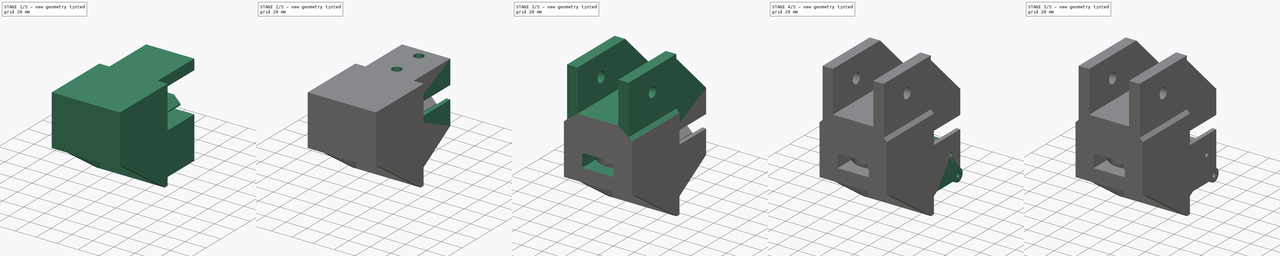
[diagram: build sequence overview — one tinted view per stage of 5, left to right]
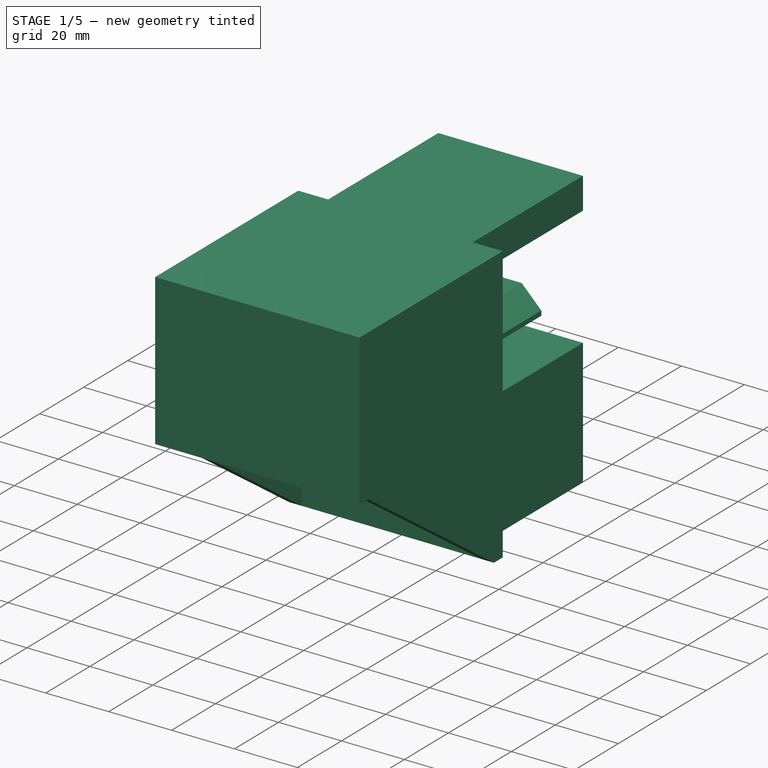
[diagram: stage 1 of 5 — iso view after this stage's code; geometry added in this stage tinted green]
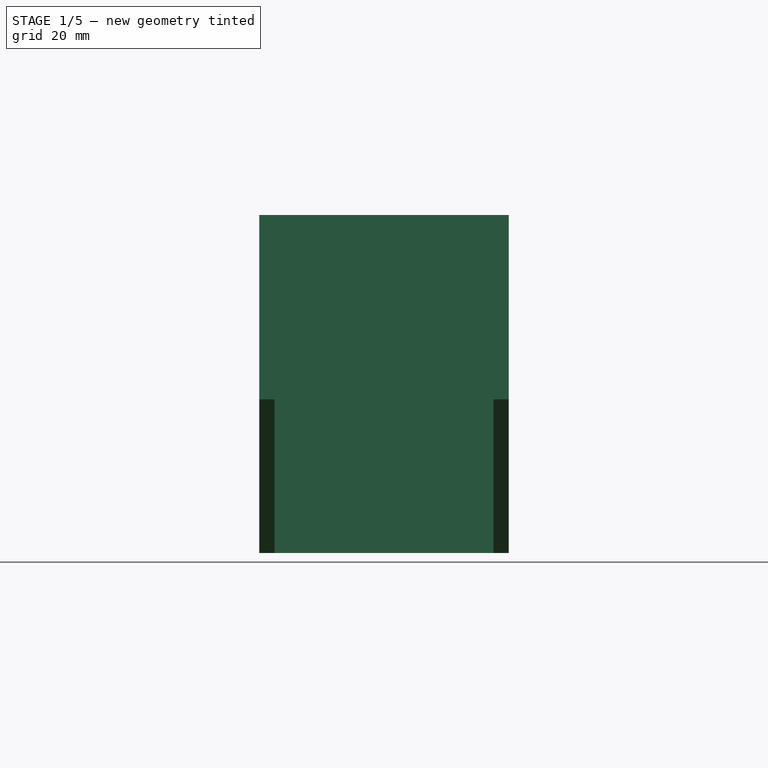
[diagram: stage 1 of 5 — front view after this stage's code; geometry added in this stage tinted green]
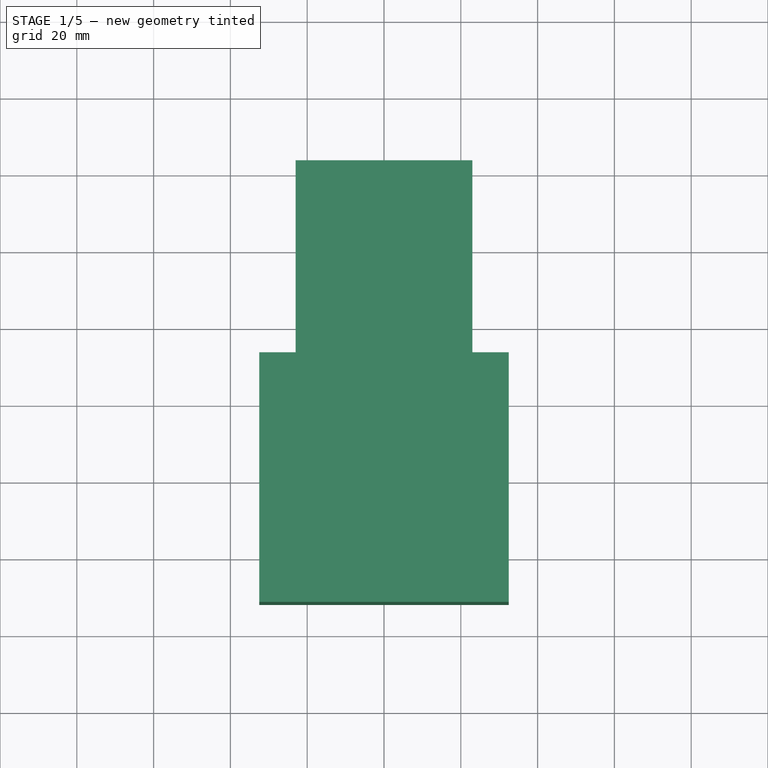
[diagram: stage 1 of 5 — top view after this stage's code; geometry added in this stage tinted green]
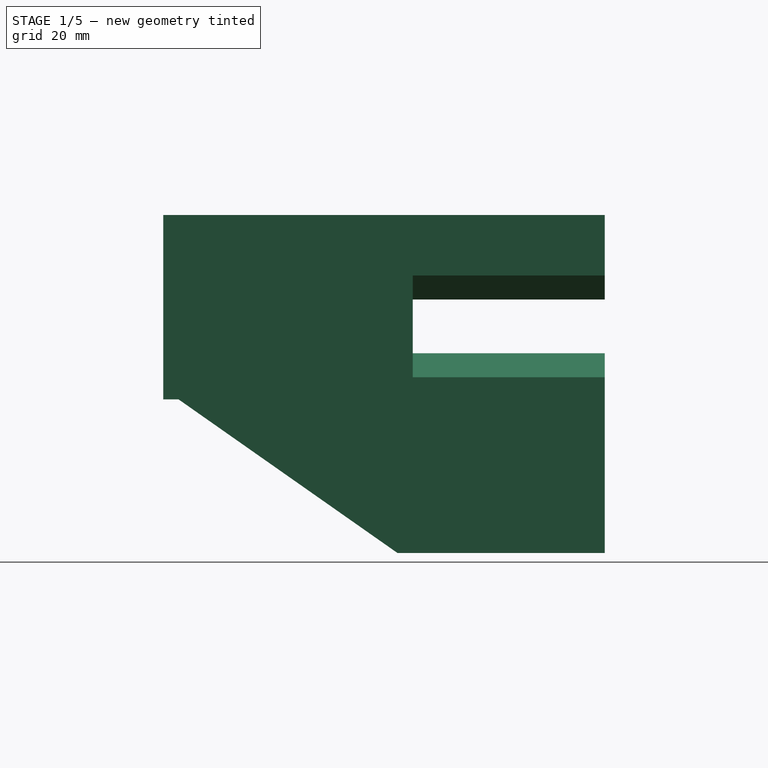
[diagram: stage 1 of 5 — right view after this stage's code; geometry added in this stage tinted green]
FCSTD DOCUMENT  (FreeCAD 1.0R39109 (Git))
Label: ARM_LargeMotorMount_v1.2
License: All rights reserved
LicenseURL: https://en.wikipedia.org/wiki/All_rights_reserved
objects: Sketcher::SketchObject×26, PartDesign::Pocket×17, PartDesign::Pad×11, PartDesign::Chamfer×4, PartDesign::Fillet×3, PartDesign::Body×1
note: 158 computed .brp shape members not serialized (recipe doc carries the construction recipe); baked Part::Feature solids carry a one-line shape summary decoded from their .brp

FEATURE [Sketcher::SketchObject] Sketch
  ArcFitTolerance = 1e-06
  AttachmentSupport = -> [XY_Plane]
  FullyConstrained = true
  MakeInternals = false
  MapMode = 5
  sketch-geometry (24):
    g0: LineSegment [constr] StartX=-23.55 StartY=-23.55 StartZ=0 EndX=23.55 EndY=-23.55 EndZ=0
    g1: LineSegment [constr] StartX=23.55 StartY=-23.55 StartZ=0 EndX=23.55 EndY=23.55 EndZ=0
    g2: LineSegment [constr] StartX=23.55 StartY=23.55 StartZ=0 EndX=-23.55 EndY=23.55 EndZ=0
    g3: LineSegment [constr] StartX=-23.55 StartY=23.55 StartZ=0 EndX=-23.55 EndY=-23.55 EndZ=0
    g4: GeomPoint [constr] X=0 Y=0 Z=0
    g5: LineSegment [constr] StartX=-28.2 StartY=-28.2 StartZ=0 EndX=28.2 EndY=-28.2 EndZ=0
    g6: LineSegment [constr] StartX=28.2 StartY=-28.2 StartZ=0 EndX=28.2 EndY=28.2 EndZ=0
    g7: LineSegment [constr] StartX=28.2 StartY=28.2 StartZ=0 EndX=-28.2 EndY=28.2 EndZ=0
    g8: LineSegment [constr] StartX=-28.2 StartY=28.2 StartZ=0 EndX=-28.2 EndY=-28.2 EndZ=0
    g9: GeomPoint [constr] X=0 Y=0 Z=0
    g10: Circle CenterX=-23.55 CenterY=23.55 CenterZ=0 NormalX=0 NormalY=0 NormalZ=1 AngleXU=0 Radius=3.375
    g11: Circle CenterX=23.55 CenterY=23.55 CenterZ=0 NormalX=0 NormalY=0 NormalZ=1 AngleXU=0 Radius=3.375
    g12: Circle CenterX=23.55 CenterY=-23.55 CenterZ=0 NormalX=0 NormalY=0 NormalZ=1 AngleXU=0 Radius=3.375
    g13: Circle CenterX=-23.55 CenterY=-23.55 CenterZ=0 NormalX=0 NormalY=0 NormalZ=1 AngleXU=0 Radius=3.375
    g14: LineSegment StartX=-32.5 StartY=-32.5 StartZ=0 EndX=32.5 EndY=-32.5 EndZ=0
    g15: LineSegment StartX=32.5 StartY=-32.5 StartZ=0 EndX=32.5 EndY=32.5 EndZ=0
    g16: LineSegment StartX=32.5 StartY=32.5 StartZ=0 EndX=-32.5 EndY=32.5 EndZ=0
    g17: LineSegment StartX=-32.5 StartY=32.5 StartZ=0 EndX=-32.5 EndY=-32.5 EndZ=0
    g18: GeomPoint [constr] X=0 Y=0 Z=0
    g19: LineSegment [constr] StartX=-19 StartY=-50 StartZ=0 EndX=19 EndY=-50 EndZ=0
    g20: LineSegment [constr] StartX=19 StartY=-50 StartZ=0 EndX=19 EndY=50 EndZ=0
    g21: LineSegment [constr] StartX=19 StartY=50 StartZ=0 EndX=-19 EndY=50 EndZ=0
    g22: LineSegment [constr] StartX=-19 StartY=50 StartZ=0 EndX=-19 EndY=-50 EndZ=0
    g23: GeomPoint [constr] X=0 Y=0 Z=0
  constraints (56):
    c: Coincident(g0,g1)
    c: Coincident(g1,g2)
    c: Coincident(g2,g3)
    c: Coincident(g3,g0)
    c: Horizontal(g0)
    c: Horizontal(g2)
    c: Vertical(g1)
    c: Vertical(g3)
    c: Symmetric(g2,g0,g4)
    c: Distance(g1,g3) = 47.1
    c: Distance(g0,g2) = 47.1
    c: Coincident(g4,g-1)
    c: Coincident(g5,g6)
    c: Coincident(g6,g7)
    c: Coincident(g7,g8)
    c: Coincident(g8,g5)
    c: Horizontal(g5)
    c: Horizontal(g7)
    c: Vertical(g6)
    c: Vertical(g8)
    c: Symmetric(g7,g5,g9)
    c: Distance(g6,g8) = 56.4
    c: Distance(g5,g7) = 56.4
    c: Coincident(g9,g4)
    c: Diameter(g10) = 6.75
    c: Coincident(g10,g2)
    c: Diameter(g11) = 6.75
    c: Coincident(g11,g1)
    c: Diameter(g12) = 6.75
    c: Coincident(g12,g0)
    c: Diameter(g13) = 6.75
    c: Coincident(g13,g0)
    c: Coincident(g14,g15)
    c: Coincident(g15,g16)
    c: Coincident(g16,g17)
    c: Coincident(g17,g14)
    c: Horizontal(g14)
    c: Horizontal(g16)
    c: Vertical(g15)
    c: Vertical(g17)
    c: Symmetric(g16,g14,g18)
    c: Distance(g15,g17) = 65
    c: Distance(g14,g16) = 65
    c: Coincident(g18,g4)
    c: Coincident(g19,g20)
    c: Coincident(g20,g21)
    c: Coincident(g21,g22)
    c: Coincident(g22,g19)
    c: Horizontal(g19)
    c: Horizontal(g21)
    c: Vertical(g20)
    c: Vertical(g22)
    c: Symmetric(g21,g19,g23)
    c: Distance(g20,g22) = 38
    c: Distance(g19,g21) = 100
    c: Coincident(g23,g4)
FEATURE [PartDesign::Pad] Pad
  Direction = (0,0,1)
  Length = 38
  Length2 = 10
  Profile = -> Sketch
  ReferenceAxis = -> Sketch [N_Axis]
  Refine = true
  Suppressed = false
  Type = 0
FEATURE [Sketcher::SketchObject] Sketch001
  ArcFitTolerance = 1e-06
  AttachmentSupport = -> [Pad]
  FullyConstrained = true
  MakeInternals = false
  MapMode = 5
  Placement = pos=(0,0,0) rot=(1,0,0;3.14159rad)
  sketch-geometry (1):
    g0: Circle CenterX=0 CenterY=0 CenterZ=0 NormalX=0 NormalY=0 NormalZ=1 AngleXU=0 Radius=20
  constraints (2):
    c: Diameter(g0) = 40
    c: Coincident(g0,g-1)
FEATURE [PartDesign::Pocket] Pocket
  BaseFeature = -> Pad
  Direction = (0,0,1)
  Length = 30
  Length2 = 5
  Profile = -> Sketch001
  ReferenceAxis = -> Sketch001 [N_Axis]
  Refine = true
  Suppressed = false
  Type = 0
FEATURE [Sketcher::SketchObject] Sketch002
  ArcFitTolerance = 1e-06
  AttachmentSupport = -> [Pocket]
  FullyConstrained = true
  MakeInternals = false
  MapMode = 5
  Placement = pos=(0,32.5,0) rot=(0,0.707107,0.707107;3.14159rad)
  sketch-geometry (43):
    g0: LineSegment [constr] StartX=0 StartY=0 StartZ=0 EndX=0 EndY=19 EndZ=0
    g1: LineSegment [constr] StartX=-7 StartY=12 StartZ=0 EndX=7 EndY=12 EndZ=0
    g2: LineSegment [constr] StartX=7 StartY=12 StartZ=0 EndX=7 EndY=26 EndZ=0
    g3: LineSegment [constr] StartX=7 StartY=26 StartZ=0 EndX=-7 EndY=26 EndZ=0
    g4: LineSegment [constr] StartX=-7 StartY=26 StartZ=0 EndX=-7 EndY=12 EndZ=0
    g5: GeomPoint [constr] X=0 Y=19 Z=0
    g6: LineSegment [constr] StartX=-14.7447 StartY=4.2553 StartZ=0 EndX=14.7447 EndY=4.2553 EndZ=0
    g7: LineSegment [constr] StartX=14.7447 StartY=4.2553 StartZ=0 EndX=14.7447 EndY=33.7447 EndZ=0
    g8: LineSegment [constr] StartX=14.7447 StartY=33.7447 StartZ=0 EndX=-14.7447 EndY=33.7447 EndZ=0
    g9: LineSegment [constr] StartX=-14.7447 StartY=33.7447 StartZ=0 EndX=-14.7447 EndY=4.2553 EndZ=0
    g10: GeomPoint [constr] X=0 Y=19 Z=0
    g11: LineSegment [constr] StartX=-9.75 StartY=0 StartZ=0 EndX=9.75 EndY=0 EndZ=0
    g12: LineSegment [constr] StartX=9.75 StartY=0 StartZ=0 EndX=9.75 EndY=38 EndZ=0
    g13: LineSegment [constr] StartX=9.75 StartY=38 StartZ=0 EndX=-9.75 EndY=38 EndZ=0
    g14: LineSegment [constr] StartX=-9.75 StartY=38 StartZ=0 EndX=-9.75 EndY=0 EndZ=0
    g15: GeomPoint [constr] X=0 Y=19 Z=0
    g16: LineSegment [constr] StartX=-19 StartY=9.25 StartZ=0 EndX=19 EndY=9.25 EndZ=0
    g17: LineSegment [constr] StartX=19 StartY=9.25 StartZ=0 EndX=19 EndY=28.75 EndZ=0
    g18: LineSegment [constr] StartX=19 StartY=28.75 StartZ=0 EndX=-19 EndY=28.75 EndZ=0
    g19: LineSegment [constr] StartX=-19 StartY=28.75 StartZ=0 EndX=-19 EndY=9.25 EndZ=0
    g20: GeomPoint [constr] X=0 Y=19 Z=0
    g21: LineSegment StartX=0 StartY=38 StartZ=0 EndX=-4 EndY=38 EndZ=0
    g22: LineSegment StartX=-4 StartY=38 StartZ=0 EndX=-4 EndY=33.7447 EndZ=0
    g23: LineSegment StartX=0 StartY=38 StartZ=0 EndX=4 EndY=38 EndZ=0
    g24: LineSegment StartX=4 StartY=38 StartZ=0 EndX=4 EndY=33.7447 EndZ=0
    g25: LineSegment StartX=4 StartY=33.7447 StartZ=0 EndX=9.75 EndY=33.7447 EndZ=0
    g26: LineSegment StartX=9.75 StartY=33.7447 StartZ=0 EndX=9.75 EndY=32.2447 EndZ=0
    g27: LineSegment StartX=-4 StartY=33.7447 StartZ=0 EndX=-9.75 EndY=33.7447 EndZ=0
    g28: LineSegment StartX=-9.75 StartY=33.7447 StartZ=0 EndX=-9.75 EndY=32.2447 EndZ=0
    g29: LineSegment StartX=-9.75 StartY=32.2447 StartZ=0 EndX=-3.5053 EndY=26 EndZ=0
    g30: LineSegment StartX=9.75 StartY=32.2447 StartZ=0 EndX=3.50531 EndY=26 EndZ=0
    g31: LineSegment StartX=-3.5053 StartY=26 StartZ=0 EndX=3.50531 EndY=26 EndZ=0
    g32: LineSegment StartX=0 StartY=0 StartZ=0 EndX=-4 EndY=0 EndZ=0
    g33: LineSegment StartX=-4 StartY=0 StartZ=0 EndX=-4 EndY=4.2553 EndZ=0
    g34: LineSegment StartX=0 StartY=0 StartZ=0 EndX=4 EndY=0 EndZ=0
    g35: LineSegment StartX=4 StartY=0 StartZ=0 EndX=4 EndY=4.2553 EndZ=0
    g36: LineSegment StartX=-4 StartY=4.2553 StartZ=0 EndX=-9.75 EndY=4.2553 EndZ=0
    g37: LineSegment StartX=-9.75 StartY=4.2553 StartZ=0 EndX=-9.75 EndY=5.7553 EndZ=0
    g38: LineSegment StartX=4 StartY=4.2553 StartZ=0 EndX=9.75 EndY=4.2553 EndZ=0
    g39: LineSegment StartX=9.75 StartY=4.2553 StartZ=0 EndX=9.75 EndY=5.7553 EndZ=0
    g40: LineSegment StartX=-9.75 StartY=5.7553 StartZ=0 EndX=-3.5053 EndY=12 EndZ=0
    g41: LineSegment StartX=9.75 StartY=5.7553 StartZ=0 EndX=3.50531 EndY=12 EndZ=0
    g42: LineSegment StartX=-3.5053 StartY=12 StartZ=0 EndX=3.50531 EndY=12 EndZ=0
  constraints (115):
    c: Distance(g0) = 19
    c: Coincident(g0,g-1)
    c: PointOnObject(g0,g-2)
    c: Coincident(g1,g2)
    c: Coincident(g2,g3)
    c: Coincident(g3,g4)
    c: Coincident(g4,g1)
    c: Horizontal(g1)
    c: Horizontal(g3)
    c: Vertical(g2)
    c: Vertical(g4)
    c: Symmetric(g3,g1,g5)
    c: Distance(g2,g4) = 14
    c: Distance(g1,g3) = 14
    c: Coincident(g5,g0)
    c: Coincident(g6,g7)
    c: Coincident(g7,g8)
    c: Coincident(g8,g9)
    c: Coincident(g9,g6)
    c: Horizontal(g6)
    c: Horizontal(g8)
    c: Vertical(g7)
    c: Vertical(g9)
    c: Symmetric(g8,g6,g10)
    c: Distance(g7,g9) = 29.4894
    c: Distance(g6,g8) = 29.4894
    c: Coincident(g10,g0)
    c: Coincident(g11,g12)
    c: Coincident(g12,g13)
    c: Coincident(g13,g14)
    c: Coincident(g14,g11)
    c: Horizontal(g11)
    c: Horizontal(g13)
    c: Vertical(g12)
    c: Vertical(g14)
    c: Symmetric(g13,g11,g15)
    c: Distance(g12,g14) = 19.5
    c: Distance(g11,g13) = 38
    c: Coincident(g15,g0)
    c: Coincident(g16,g17)
    c: Coincident(g17,g18)
    c: Coincident(g18,g19)
    c: Coincident(g19,g16)
    c: Horizontal(g16)
    c: Horizontal(g18)
    c: Vertical(g17)
    c: Vertical(g19)
    c: Symmetric(g18,g16,g20)
    c: Distance(g17,g19) = 38
    c: Distance(g16,g18) = 19.5
    c: Coincident(g20,g0)
    c: Distance(g21) = 4
    c: Symmetric(g13,g13,g21)
    c: PointOnObject(g21,g13)
    c: Coincident(g22,g21)
    c: Vertical(g22)
    c: Distance(g23) = 4
    c: Coincident(g23,g21)
    c: PointOnObject(g23,g13)
    c: Coincident(g24,g23)
    c: Vertical(g24)
    c: PointOnObject(g24,g8)
    c: PointOnObject(g22,g8)
    c: Distance(g25) = 5.75
    c: Coincident(g25,g24)
    c: PointOnObject(g25,g8)
    c: Distance(g26) = 1.5
    c: Coincident(g26,g25)
    c: PointOnObject(g26,g12)
    c: Coincident(g27,g22)
    c: PointOnObject(g27,g14)
    c: Horizontal(g27)
    c: Distance(g28) = 1.5
    c: Coincident(g28,g27)
    c: PointOnObject(g28,g14)
    c: Angle(g-1,g29) = -0.785398
    c: Coincident(g29,g28)
    c: Angle(g-1,g30) = -2.35619
    c: Coincident(g30,g26)
    c: PointOnObject(g29,g3)
    c: PointOnObject(g30,g3)
    c: Coincident(g31,g29)
    c: Coincident(g31,g30)
    c: Distance(g32) = 4
    c: Coincident(g32,g0)
    c: PointOnObject(g32,g11)
    c: Coincident(g33,g32)
    c: Vertical(g33)
    c: Distance(g34) = 4
    c: Coincident(g34,g0)
    c: PointOnObject(g34,g11)
    c: Coincident(g35,g34)
    c: Vertical(g35)
    c: PointOnObject(g35,g6)
    c: PointOnObject(g33,g6)
    c: Distance(g36) = 5.75
    c: Coincident(g36,g33)
    c: PointOnObject(g36,g6)
    c: Distance(g37) = 1.5
    c: Coincident(g37,g36)
    c: PointOnObject(g37,g14)
    c: Distance(g38) = 5.75
    c: Coincident(g38,g35)
    c: PointOnObject(g38,g6)
    c: Distance(g39) = 1.5
    c: Coincident(g39,g38)
    c: PointOnObject(g39,g12)
    c: Angle(g-1,g40) = 0.785398
    c: Coincident(g40,g37)
    c: Angle(g-1,g41) = 2.35619
    c: Coincident(g41,g39)
    c: PointOnObject(g40,g1)
    c: PointOnObject(g41,g1)
    c: Coincident(g42,g40)
    c: Coincident(g42,g41)
FEATURE [PartDesign::Pad] Pad001
  BaseFeature = -> Pocket
  Direction = (0,1,-2e-16)
  Length = 50
  Length2 = 10
  Profile = -> Sketch002
  ReferenceAxis = -> Sketch002 [N_Axis]
  Refine = true
  Suppressed = false
  Type = 0
FEATURE [Sketcher::SketchObject] Sketch003
  ArcFitTolerance = 1e-06
  AttachmentSupport = -> [Pad001]
  ExternalGeometry = -> [Pad001]
  FullyConstrained = true
  MakeInternals = false
  MapMode = 5
  Placement = pos=(0,32.5,0) rot=(0,0.707107,0.707107;3.14159rad)
  sketch-geometry (13):
    g0: LineSegment [constr] StartX=4.08147e-06 StartY=26 StartZ=0 EndX=4.08147e-06 EndY=12 EndZ=0
    g1: LineSegment [constr] StartX=4.08147e-06 StartY=19 StartZ=0 EndX=-13 EndY=19 EndZ=0
    g2: LineSegment [constr] StartX=4.08147e-06 StartY=19 StartZ=0 EndX=13 EndY=19 EndZ=0
    g3: LineSegment StartX=-19 StartY=13 StartZ=0 EndX=-7 EndY=13 EndZ=0
    g4: LineSegment StartX=-7 StartY=13 StartZ=0 EndX=-7 EndY=25 EndZ=0
    g5: LineSegment StartX=-7 StartY=25 StartZ=0 EndX=-19 EndY=25 EndZ=0
    g6: LineSegment StartX=-19 StartY=25 StartZ=0 EndX=-19 EndY=13 EndZ=0
    g7: GeomPoint [constr] X=-13 Y=19 Z=0
    g8: LineSegment StartX=7 StartY=13 StartZ=0 EndX=19 EndY=13 EndZ=0
    g9: LineSegment StartX=19 StartY=13 StartZ=0 EndX=19 EndY=25 EndZ=0
    g10: LineSegment StartX=19 StartY=25 StartZ=0 EndX=7 EndY=25 EndZ=0
    g11: LineSegment StartX=7 StartY=25 StartZ=0 EndX=7 EndY=13 EndZ=0
    g12: GeomPoint [constr] X=13 Y=19 Z=0
  constraints (32):
    c: Symmetric(g-3,g-3,g0)
    c: Symmetric(g-4,g-4,g0)
    c: Distance(g1) = 13
    c: Symmetric(g0,g0,g1)
    c: Horizontal(g1)
    c: Distance(g2) = 13
    c: Coincident(g2,g1)
    c: Horizontal(g2)
    c: Coincident(g3,g4)
    c: Coincident(g4,g5)
    c: Coincident(g5,g6)
    c: Coincident(g6,g3)
    c: Horizontal(g3)
    c: Horizontal(g5)
    c: Vertical(g4)
    c: Vertical(g6)
    c: Symmetric(g5,g3,g7)
    c: Distance(g4,g6) = 12
    c: Distance(g3,g5) = 12
    c: Coincident(g7,g1)
    c: Coincident(g8,g9)
    c: Coincident(g9,g10)
    c: Coincident(g10,g11)
    c: Coincident(g11,g8)
    c: Horizontal(g8)
    c: Horizontal(g10)
    c: Vertical(g9)
    c: Vertical(g11)
    c: Symmetric(g10,g8,g12)
    c: Distance(g9,g11) = 12
    c: Distance(g8,g10) = 12
    c: Coincident(g12,g2)
FEATURE [PartDesign::Pocket] Pocket001
  BaseFeature = -> Pad001
  Direction = (0,-1,2e-16)
  Length = 30
  Length2 = 5
  Profile = -> Sketch003
  ReferenceAxis = -> Sketch003 [N_Axis]
  Refine = true
  Suppressed = false
  Type = 0
FEATURE [Sketcher::SketchObject] Sketch004
  ArcFitTolerance = 1e-06
  AttachmentSupport = -> [Pocket001]
  ExternalGeometry = -> [Pocket001]
  FullyConstrained = false
  MakeInternals = false
  MapMode = 5
  Placement = pos=(0,0,-1.8e-15) rot=(1,0,0;3.14159rad)
  sketch-geometry (15):
    g0: LineSegment StartX=-28.5 StartY=-28.5 StartZ=0 EndX=28.5 EndY=-28.5 EndZ=0
    g1: LineSegment StartX=28.5 StartY=-28.5 StartZ=0 EndX=28.5 EndY=28.5 EndZ=0
    g2: LineSegment StartX=28.5 StartY=28.5 StartZ=0 EndX=-28.5 EndY=28.5 EndZ=0
    g3: LineSegment StartX=-28.5 StartY=28.5 StartZ=0 EndX=-28.5 EndY=-28.5 EndZ=0
    g4: GeomPoint [constr] X=0 Y=0 Z=0
    g5: LineSegment StartX=0 StartY=-82.5 StartZ=0 EndX=23 EndY=-82.5 EndZ=0
    g6: LineSegment StartX=0 StartY=-82.5 StartZ=0 EndX=-23 EndY=-82.5 EndZ=0
    g7: LineSegment StartX=23 StartY=-82.5 StartZ=0 EndX=23 EndY=-32.5 EndZ=0
    g8: LineSegment StartX=-23 StartY=-82.5 StartZ=0 EndX=-23 EndY=-32.5 EndZ=0
    g9: LineSegment StartX=-32.5 StartY=-32.5 StartZ=0 EndX=-23 EndY=-32.5 EndZ=0
    g10: LineSegment StartX=32.5 StartY=-32.5 StartZ=0 EndX=32.5 EndY=32.5 EndZ=0
    g11: LineSegment StartX=32.5 StartY=32.5 StartZ=0 EndX=-32.5 EndY=32.5 EndZ=0
    g12: LineSegment StartX=-32.5 StartY=32.5 StartZ=0 EndX=-32.5 EndY=-32.5 EndZ=0
    g13: GeomPoint [constr] X=0 Y=0 Z=0
    g14: LineSegment StartX=23 StartY=-32.5 StartZ=0 EndX=32.5 EndY=-32.5 EndZ=0
  constraints (38):
    c: Coincident(g0,g1)
    c: Coincident(g1,g2)
    c: Coincident(g2,g3)
    c: Coincident(g3,g0)
    c: Horizontal(g0)
    c: Horizontal(g2)
    c: Vertical(g1)
    c: Vertical(g3)
    c: Symmetric(g2,g0,g4)
    c: Distance(g1,g3) = 57
    c: Distance(g0,g2) = 57
    c: Coincident(g4,g-1)
    c: Distance(g5) = 23
    c: Symmetric(g-3,g-3,g5)
    c: Horizontal(g5)
    c: Distance(g6) = 23
    c: Coincident(g6,g5)
    c: Horizontal(g6)
    c: Distance(g7) = 50
    c: Coincident(g7,g5)
    c: Vertical(g7)
    c: Distance(g8) = 50
    c: Coincident(g8,g6)
    c: Vertical(g8)
    c: Coincident(g14,g10)
    c: Coincident(g10,g11)
    c: Coincident(g11,g12)
    c: Coincident(g12,g9)
    c: Horizontal(g9)
    c: Horizontal(g11)
    c: Vertical(g10)
    c: Vertical(g12)
    c: Symmetric(g11,g9,g13)
    c: Distance(g10,g12) = 65
    c: Distance(g9,g11) = 65
    c: Coincident(g13,g4)
    c: PointOnObject(g9,g8)
    c: PointOnObject(g14,g7)
FEATURE [PartDesign::Pad] Pad002
  BaseFeature = -> Pocket001
  Direction = (0,0,-1)
  Length = 40
  Length2 = 10
  Profile = -> Sketch004
  ReferenceAxis = -> Sketch004 [N_Axis]
  Refine = true
  Suppressed = false
  Type = 0
FEATURE [Sketcher::SketchObject] Sketch005
  ArcFitTolerance = 1e-06
  AttachmentSupport = -> [Pad002]
  ExternalGeometry = -> [Pad002]
  FullyConstrained = true
  MakeInternals = false
  MapMode = 5
  Placement = pos=(32.5,0,0) rot=(0.57735,0.57735,0.57735;2.0944rad)
  sketch-geometry (5):
    g0: LineSegment StartX=-32.5 StartY=-40 StartZ=0 EndX=-32.5 EndY=0 EndZ=0
    g1: LineSegment StartX=-32.5 StartY=0 StartZ=0 EndX=-28.5 EndY=0 EndZ=0
    g2: LineSegment [constr] StartX=32.5 StartY=-40 StartZ=0 EndX=28.5 EndY=-40 EndZ=0
    g3: LineSegment StartX=-28.5 StartY=0 StartZ=0 EndX=28.5 EndY=-40 EndZ=0
    g4: LineSegment StartX=-32.5 StartY=-40 StartZ=0 EndX=28.5 EndY=-40 EndZ=0
  constraints (13):
    c: Distance(g0) = 40
    c: Coincident(g0,g-4)
    c: Vertical(g0)
    c: Distance(g1) = 4
    c: Coincident(g1,g0)
    c: PointOnObject(g1,g-1)
    c: Distance(g2) = 4
    c: Coincident(g2,g-3)
    c: PointOnObject(g2,g-3)
    c: Coincident(g3,g1)
    c: Coincident(g3,g2)
    c: Coincident(g4,g0)
    c: Coincident(g4,g2)
FEATURE [PartDesign::Pocket] Pocket002
  BaseFeature = -> Pad002
  Direction = (-1,0,0)
  Length = 100
  Length2 = 5
  Profile = -> Sketch005
  ReferenceAxis = -> Sketch005 [N_Axis]
  Refine = true
  Suppressed = false
  Type = 0
FEATURE [Sketcher::SketchObject] Sketch006
  ArcFitTolerance = 1e-06
  AttachmentSupport = -> [Pocket002]
  ExternalGeometry = -> [Pocket002]
  FullyConstrained = false
  MakeInternals = false
  MapMode = 5
  Placement = pos=(0,0,38) rot=(0,0,1;0rad)
  sketch-geometry (10):
    g0: LineSegment StartX=0 StartY=82.5 StartZ=0 EndX=-23 EndY=82.5 EndZ=0
    g1: LineSegment StartX=0 StartY=82.5 StartZ=0 EndX=23 EndY=82.5 EndZ=0
    g2: LineSegment StartX=-23 StartY=82.5 StartZ=0 EndX=-23 EndY=32.5 EndZ=0
    g3: LineSegment StartX=23 StartY=82.5 StartZ=0 EndX=23 EndY=32.5 EndZ=0
    g4: LineSegment StartX=-32.5 StartY=-32.5 StartZ=0 EndX=32.5 EndY=-32.5 EndZ=0
    g5: LineSegment StartX=32.5 StartY=-32.5 StartZ=0 EndX=32.5 EndY=32.5 EndZ=0
    g6: LineSegment StartX=32.5 StartY=32.5 StartZ=0 EndX=23 EndY=32.5 EndZ=0
    g7: LineSegment StartX=-32.5 StartY=32.5 StartZ=0 EndX=-32.5 EndY=-32.5 EndZ=0
    g8: GeomPoint [constr] X=0 Y=0 Z=0
    g9: LineSegment StartX=-23 StartY=32.5 StartZ=0 EndX=-32.5 EndY=32.5 EndZ=0
  constraints (26):
    c: Distance(g0) = 23
    c: Symmetric(g-3,g-3,g0)
    c: Horizontal(g0)
    c: Distance(g1) = 23
    c: Coincident(g1,g0)
    c: Horizontal(g1)
    c: Distance(g2) = 50
    c: Coincident(g2,g0)
    c: Vertical(g2)
    c: Distance(g3) = 50
    c: Coincident(g3,g1)
    c: Vertical(g3)
    c: Coincident(g4,g5)
    c: Coincident(g5,g6)
    c: Coincident(g9,g7)
    c: Coincident(g7,g4)
    c: Horizontal(g4)
    c: Horizontal(g6)
    c: Vertical(g5)
    c: Vertical(g7)
    c: Symmetric(g6,g4,g8)
    c: Distance(g5,g7) = 65
    c: Distance(g4,g9) = 65
    c: Coincident(g8,g-1)
    c: PointOnObject(g6,g3)
    c: PointOnObject(g9,g2)
FEATURE [PartDesign::Pad] Pad003
  BaseFeature = -> Pocket002
  Direction = (0,0,1)
  Length = 10
  Length2 = 10
  Profile = -> Sketch006
  ReferenceAxis = -> Sketch006 [N_Axis]
  Refine = true
  Suppressed = false
  Type = 0
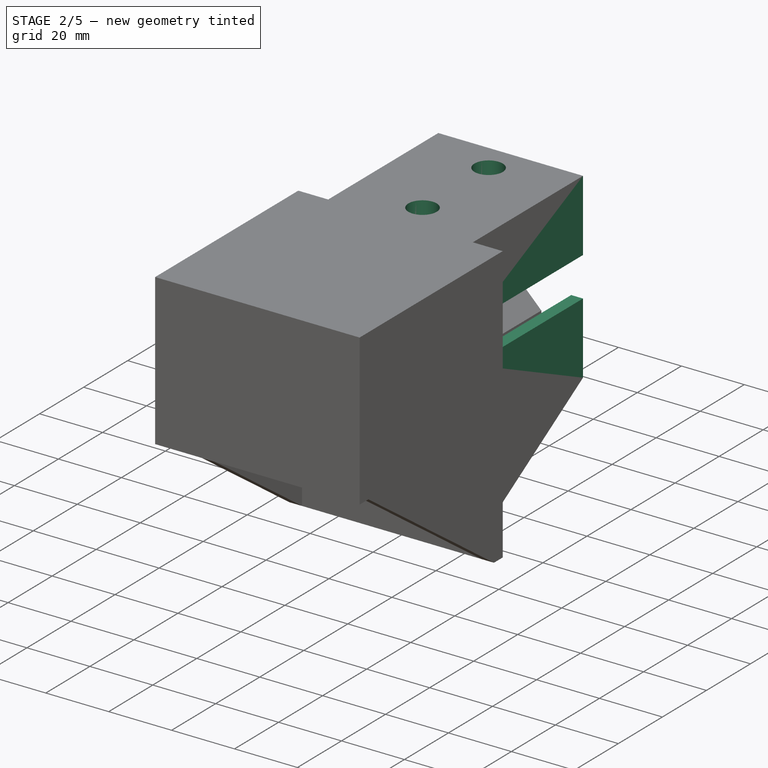
[diagram: stage 2 of 5 — iso view after this stage's code; geometry added in this stage tinted green]
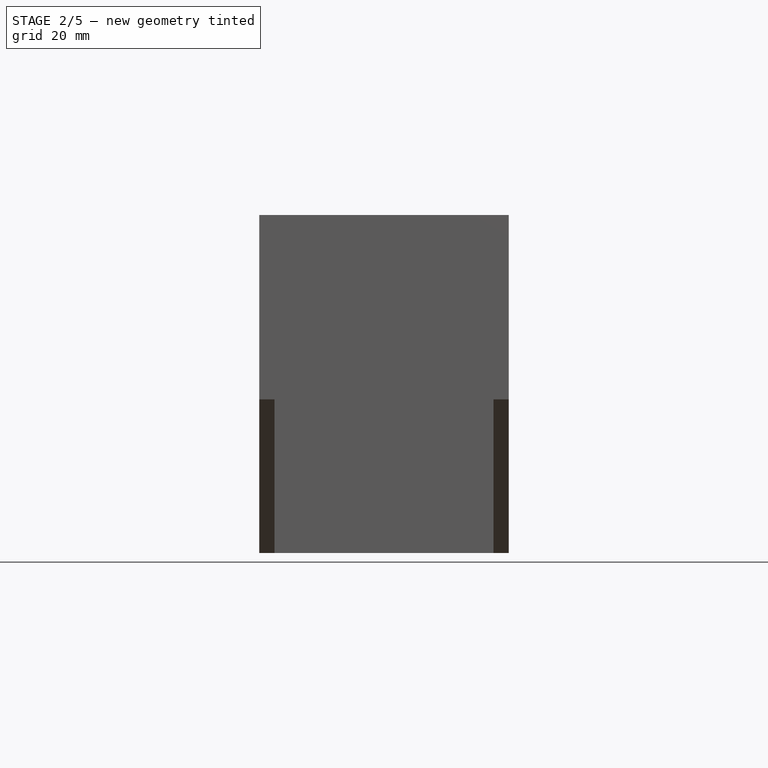
[diagram: stage 2 of 5 — front view after this stage's code; geometry added in this stage tinted green]
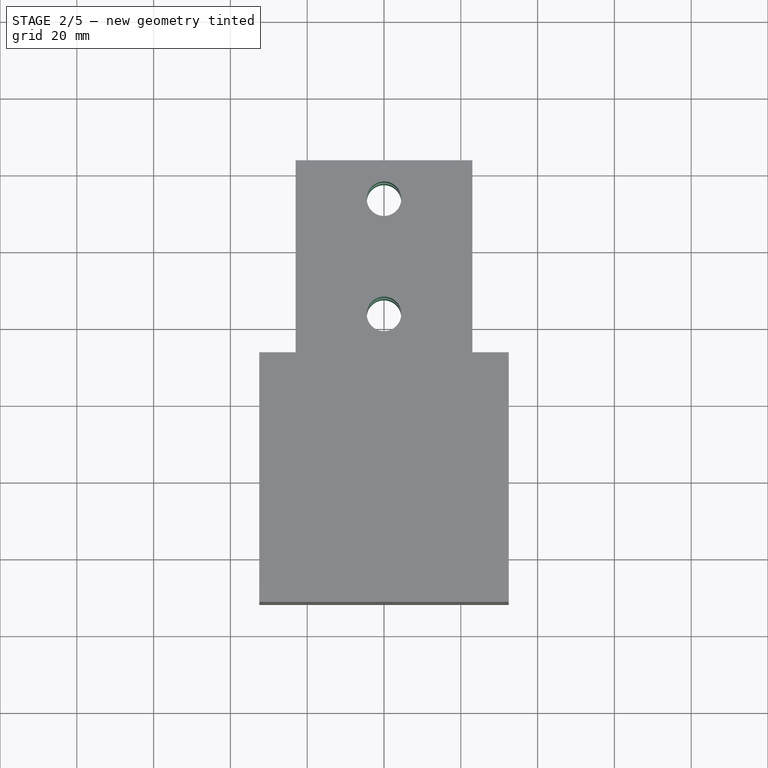
[diagram: stage 2 of 5 — top view after this stage's code; geometry added in this stage tinted green]
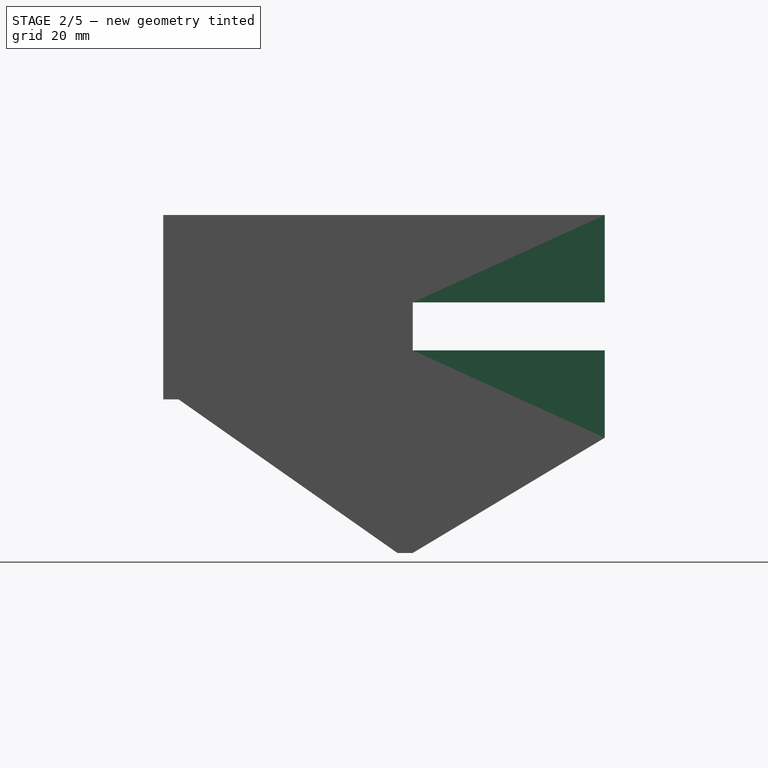
[diagram: stage 2 of 5 — right view after this stage's code; geometry added in this stage tinted green]
FEATURE [Sketcher::SketchObject] Sketch007
  ArcFitTolerance = 1e-06
  AttachmentSupport = -> [Pad003]
  ExternalGeometry = -> [Pad003]
  FullyConstrained = true
  MakeInternals = false
  MapMode = 5
  Placement = pos=(0,0,-1.8e-15) rot=(0,0,1;0rad)
  sketch-geometry (8):
    g0: LineSegment StartX=23 StartY=82.5 StartZ=0 EndX=4 EndY=82.5 EndZ=0
    g1: LineSegment StartX=4 StartY=82.5 StartZ=0 EndX=4 EndY=32.5 EndZ=0
    g2: LineSegment StartX=4 StartY=32.5 StartZ=0 EndX=23 EndY=32.5 EndZ=0
    g3: LineSegment StartX=23 StartY=32.5 StartZ=0 EndX=23 EndY=82.5 EndZ=0
    g4: LineSegment StartX=-23 StartY=82.5 StartZ=0 EndX=-23 EndY=32.5 EndZ=0
    g5: LineSegment StartX=-23 StartY=32.5 StartZ=0 EndX=-4 EndY=32.5 EndZ=0
    g6: LineSegment StartX=-4 StartY=32.5 StartZ=0 EndX=-4 EndY=82.5 EndZ=0
    g7: LineSegment StartX=-4 StartY=82.5 StartZ=0 EndX=-23 EndY=82.5 EndZ=0
  constraints (21):
    c: Coincident(g0,g1)
    c: Coincident(g1,g2)
    c: Coincident(g2,g3)
    c: Coincident(g3,g0)
    c: Horizontal(g0)
    c: Horizontal(g2)
    c: Vertical(g1)
    c: Vertical(g3)
    c: Distance(g1,g3) = 19
    c: Distance(g0,g2) = 50
    c: Coincident(g0,g-4)
    c: Coincident(g4,g5)
    c: Coincident(g5,g6)
    c: Coincident(g6,g7)
    c: Coincident(g7,g4)
    c: Vertical(g4)
    c: Vertical(g6)
    c: Horizontal(g5)
    c: Horizontal(g7)
    c: Coincident(g4,g-3)
    c: Coincident(g5,g-6)
FEATURE [PartDesign::Pocket] Pocket003  label="MountingClearanceNudge1"
  BaseFeature = -> Pad003
  Direction = (0,0,-1)
  Length = 0.25
  Length2 = 5
  Profile = -> Sketch007
  ReferenceAxis = -> Sketch007 [N_Axis]
  Refine = true
  Suppressed = false
  Type = 0
FEATURE [Sketcher::SketchObject] Sketch008
  ArcFitTolerance = 1e-06
  AttachmentSupport = -> [Pocket003]
  ExternalGeometry = -> [Pocket003]
  FullyConstrained = true
  MakeInternals = false
  MapMode = 5
  Placement = pos=(0,0,38) rot=(1,0,0;3.14159rad)
  sketch-geometry (8):
    g0: LineSegment StartX=-23 StartY=-82.5 StartZ=0 EndX=-4 EndY=-82.5 EndZ=0
    g1: LineSegment StartX=-4 StartY=-82.5 StartZ=0 EndX=-4 EndY=-32.5 EndZ=0
    g2: LineSegment StartX=-4 StartY=-32.5 StartZ=0 EndX=-23 EndY=-32.5 EndZ=0
    g3: LineSegment StartX=-23 StartY=-32.5 StartZ=0 EndX=-23 EndY=-82.5 EndZ=0
    g4: LineSegment StartX=23 StartY=-82.5 StartZ=0 EndX=23 EndY=-32.5 EndZ=0
    g5: LineSegment StartX=23 StartY=-32.5 StartZ=0 EndX=4 EndY=-32.5 EndZ=0
    g6: LineSegment StartX=4 StartY=-32.5 StartZ=0 EndX=4 EndY=-82.5 EndZ=0
    g7: LineSegment StartX=4 StartY=-82.5 StartZ=0 EndX=23 EndY=-82.5 EndZ=0
  constraints (20):
    c: Coincident(g0,g1)
    c: Coincident(g1,g2)
    c: Coincident(g2,g3)
    c: Coincident(g3,g0)
    c: Horizontal(g0)
    c: Horizontal(g2)
    c: Vertical(g1)
    c: Vertical(g3)
    c: Coincident(g0,g-5)
    c: Coincident(g1,g-6)
    c: Coincident(g4,g5)
    c: Coincident(g5,g6)
    c: Coincident(g6,g7)
    c: Coincident(g7,g4)
    c: Vertical(g4)
    c: Vertical(g6)
    c: Horizontal(g5)
    c: Horizontal(g7)
    c: Coincident(g4,g-4)
    c: Coincident(g5,g-3)
FEATURE [PartDesign::Pocket] Pocket004  label="MountingClearanceNudge2"
  BaseFeature = -> Pocket003
  Direction = (0,0,1)
  Length = 0.25
  Length2 = 5
  Profile = -> Sketch008
  ReferenceAxis = -> Sketch008 [N_Axis]
  Refine = true
  Suppressed = false
  Type = 0
FEATURE [Sketcher::SketchObject] Sketch009
  ArcFitTolerance = 1e-06
  AttachmentSupport = -> [Pocket004]
  ExternalGeometry = -> [Pocket004]
  FullyConstrained = true
  MakeInternals = false
  MapMode = 5
  Placement = pos=(0,32.5,0) rot=(0,0.707107,0.707107;3.14159rad)
  sketch-geometry (16):
    g0: LineSegment StartX=23 StartY=38.25 StartZ=0 EndX=19.25 EndY=38.25 EndZ=0
    g1: LineSegment StartX=19.25 StartY=38.25 StartZ=0 EndX=19.25 EndY=25.25 EndZ=0
    g2: LineSegment StartX=19.25 StartY=25.25 StartZ=0 EndX=23 EndY=25.25 EndZ=0
    g3: LineSegment StartX=23 StartY=25.25 StartZ=0 EndX=23 EndY=38.25 EndZ=0
    g4: LineSegment StartX=23 StartY=-0.25 StartZ=0 EndX=23 EndY=12.75 EndZ=0
    g5: LineSegment StartX=23 StartY=12.75 StartZ=0 EndX=19.25 EndY=12.75 EndZ=0
    g6: LineSegment StartX=19.25 StartY=12.75 StartZ=0 EndX=19.25 EndY=-0.25 EndZ=0
    g7: LineSegment StartX=19.25 StartY=-0.25 StartZ=0 EndX=23 EndY=-0.25 EndZ=0
    g8: LineSegment StartX=-23 StartY=-0.25 StartZ=0 EndX=-19.25 EndY=-0.25 EndZ=0
    g9: LineSegment StartX=-19.25 StartY=-0.25 StartZ=0 EndX=-19.25 EndY=12.75 EndZ=0
    g10: LineSegment StartX=-19.25 StartY=12.75 StartZ=0 EndX=-23 EndY=12.75 EndZ=0
    g11: LineSegment StartX=-23 StartY=12.75 StartZ=0 EndX=-23 EndY=-0.25 EndZ=0
    g12: LineSegment StartX=-23 StartY=38.25 StartZ=0 EndX=-23 EndY=25.25 EndZ=0
    g13: LineSegment StartX=-23 StartY=25.25 StartZ=0 EndX=-19.25 EndY=25.25 EndZ=0
    g14: LineSegment StartX=-19.25 StartY=25.25 StartZ=0 EndX=-19.25 EndY=38.25 EndZ=0
    g15: LineSegment StartX=-19.25 StartY=38.25 StartZ=0 EndX=-23 EndY=38.25 EndZ=0
  constraints (44):
    c: Coincident(g0,g1)
    c: Coincident(g1,g2)
    c: Coincident(g2,g3)
    c: Coincident(g3,g0)
    c: Horizontal(g0)
    c: Horizontal(g2)
    c: Vertical(g1)
    c: Vertical(g3)
    c: Distance(g1,g3) = 3.75
    c: Distance(g0,g2) = 13
    c: Coincident(g0,g-4)
    c: Coincident(g4,g5)
    c: Coincident(g5,g6)
    c: Coincident(g6,g7)
    c: Coincident(g7,g4)
    c: Vertical(g4)
    c: Vertical(g6)
    c: Horizontal(g5)
    c: Horizontal(g7)
    c: Distance(g4,g6) = 3.75
    c: Distance(g5,g7) = 13
    c: Coincident(g4,g-6)
    c: Coincident(g8,g9)
    c: Coincident(g9,g10)
    c: Coincident(g10,g11)
    c: Coincident(g11,g8)
    c: Horizontal(g8)
    c: Horizontal(g10)
    c: Vertical(g9)
    c: Vertical(g11)
    c: Distance(g9,g11) = 3.75
    c: Distance(g8,g10) = 13
    c: Coincident(g8,g-5)
    c: Coincident(g12,g13)
    c: Coincident(g13,g14)
    c: Coincident(g14,g15)
    c: Coincident(g15,g12)
    c: Vertical(g12)
    c: Vertical(g14)
    c: Horizontal(g13)
    c: Horizontal(g15)
    c: Distance(g12,g14) = 3.75
    c: Distance(g13,g15) = 13
    c: Coincident(g12,g-3)
FEATURE [PartDesign::Pad] Pad004
  BaseFeature = -> Pocket004
  Direction = (0,1,-2e-16)
  Length = 50
  Length2 = 10
  Profile = -> Sketch009
  ReferenceAxis = -> Sketch009 [N_Axis]
  Refine = true
  Suppressed = false
  Type = 0
FEATURE [Sketcher::SketchObject] Sketch010
  ArcFitTolerance = 1e-06
  AttachmentSupport = -> [Pad004]
  ExternalGeometry = -> [Pad004]
  FullyConstrained = true
  MakeInternals = false
  MapMode = 5
  Placement = pos=(0,0,48) rot=(0,0,1;0rad)
  sketch-geometry (6):
    g0: LineSegment [constr] StartX=0 StartY=82.5 StartZ=0 EndX=0 EndY=72.5 EndZ=0
    g1: LineSegment [constr] StartX=0 StartY=72.5 StartZ=0 EndX=0 EndY=62.5 EndZ=0
    g2: LineSegment [constr] StartX=0 StartY=62.5 StartZ=0 EndX=0 EndY=52.5 EndZ=0
    g3: LineSegment [constr] StartX=0 StartY=52.5 StartZ=0 EndX=0 EndY=42.5 EndZ=0
    g4: Circle CenterX=0 CenterY=72.5 CenterZ=0 NormalX=0 NormalY=0 NormalZ=1 AngleXU=0 Radius=4.5
    g5: Circle CenterX=0 CenterY=42.5 CenterZ=0 NormalX=0 NormalY=0 NormalZ=1 AngleXU=0 Radius=4.5
  constraints (16):
    c: Distance(g0) = 10
    c: Symmetric(g-3,g-3,g0)
    c: Vertical(g0)
    c: Distance(g1) = 10
    c: Coincident(g1,g0)
    c: Vertical(g1)
    c: Distance(g2) = 10
    c: Coincident(g2,g1)
    c: PointOnObject(g2,g-2)
    c: Distance(g3) = 10
    c: Coincident(g3,g2)
    c: Vertical(g3)
    c: Diameter(g4) = 9
    c: Coincident(g4,g0)
    c: Diameter(g5) = 9
    c: Coincident(g5,g3)
FEATURE [PartDesign::Pocket] Pocket005
  BaseFeature = -> Pad004
  Direction = (0,0,-1)
  Length = 30
  Length2 = 5
  Profile = -> Sketch010
  ReferenceAxis = -> Sketch010 [N_Axis]
  Refine = true
  Suppressed = false
  Type = 0
FEATURE [Sketcher::SketchObject] Sketch011
  ArcFitTolerance = 1e-06
  AttachmentSupport = -> [Pocket005]
  ExternalGeometry = -> [Pocket005]
  FullyConstrained = false
  MakeInternals = false
  MapMode = 5
  Placement = pos=(0,0,-40) rot=(1,0,0;3.14159rad)
  sketch-geometry (9):
    g0: LineSegment [constr] StartX=0 StartY=-82.5 StartZ=0 EndX=0 EndY=-72.5 EndZ=0
    g1: LineSegment [constr] StartX=0 StartY=-72.5 StartZ=0 EndX=0 EndY=-62.5 EndZ=0
    g2: LineSegment [constr] StartX=0 StartY=-62.5 StartZ=0 EndX=0 EndY=-52.5 EndZ=0
    g3: LineSegment [constr] StartX=0 StartY=-52.5 StartZ=0 EndX=0 EndY=-42.5 EndZ=0
    g4: ArcOfCircle CenterX=0 CenterY=-42.5 CenterZ=0 NormalX=0 NormalY=0 NormalZ=1 AngleXU=0 Radius=9 StartAngle=-2.20858e-10 EndAngle=3.14159
    g5: LineSegment StartX=-9 StartY=-82.5 StartZ=0 EndX=9 EndY=-82.5 EndZ=0
    g6: LineSegment StartX=9 StartY=-82.5 StartZ=0 EndX=9 EndY=-42.5 EndZ=0
    g7: LineSegment StartX=-9 StartY=-42.5 StartZ=0 EndX=-9 EndY=-82.5 EndZ=0
    g8: GeomPoint [constr] X=0 Y=-62.5 Z=0
  constraints (21):
    c: Distance(g0) = 10
    c: Symmetric(g-3,g-3,g0)
    c: PointOnObject(g0,g-2)
    c: Distance(g1) = 10
    c: Coincident(g1,g0)
    c: PointOnObject(g1,g-2)
    c: Distance(g2) = 10
    c: Coincident(g2,g1)
    c: PointOnObject(g2,g-2)
    c: Distance(g3) = 10
    c: Coincident(g3,g2)
    c: PointOnObject(g3,g-2)
    c: Diameter(g4) = 18
    c: Coincident(g4,g3)
    c: Coincident(g5,g6)
    c: Coincident(g7,g5)
    c: Horizontal(g5)
    c: Vertical(g6)
    c: Vertical(g7)
    c: Distance(g6,g7) = 18
    c: Coincident(g4,g6)
FEATURE [PartDesign::Pocket] Pocket006
  BaseFeature = -> Pocket005
  Direction = (0,0,1)
  Length = 30
  Length2 = 5
  Profile = -> Sketch011
  ReferenceAxis = -> Sketch011 [N_Axis]
  Refine = true
  Suppressed = false
  Type = 0
FEATURE [Sketcher::SketchObject] Sketch012
  ArcFitTolerance = 1e-06
  AttachmentSupport = -> [Pocket006]
  ExternalGeometry = -> [Pocket006]
  FullyConstrained = true
  MakeInternals = false
  MapMode = 5
  Placement = pos=(23,0,0) rot=(0.57735,0.57735,0.57735;2.0944rad)
  sketch-geometry (3):
    g0: LineSegment StartX=82.5 StartY=-40 StartZ=0 EndX=82.5 EndY=-10 EndZ=0
    g1: LineSegment StartX=32.5 StartY=-40 StartZ=0 EndX=82.5 EndY=-10 EndZ=0
    g2: LineSegment StartX=32.5 StartY=-40 StartZ=0 EndX=82.5 EndY=-40 EndZ=0
  constraints (7):
    c: Distance(g0) = 30
    c: Coincident(g0,g-4)
    c: PointOnObject(g0,g-4)
    c: Coincident(g1,g-3)
    c: Coincident(g1,g0)
    c: Coincident(g2,g1)
    c: Coincident(g2,g0)
FEATURE [PartDesign::Pocket] Pocket007
  BaseFeature = -> Pocket006
  Direction = (-1,0,0)
  Length = 60
  Length2 = 5
  Profile = -> Sketch012
  ReferenceAxis = -> Sketch012 [N_Axis]
  Refine = true
  Suppressed = false
  Type = 0
FEATURE [Sketcher::SketchObject] Sketch013
  ArcFitTolerance = 1e-06
  AttachmentSupport = -> [Pocket007]
  ExternalGeometry = -> [Pocket007]
  FullyConstrained = true
  MakeInternals = false
  MapMode = 5
  Placement = pos=(0,0,-10) rot=(1,0,0;3.14159rad)
  sketch-geometry (6):
    g0: LineSegment [constr] StartX=0 StartY=-82.5 StartZ=0 EndX=0 EndY=-72.5 EndZ=0
    g1: LineSegment [constr] StartX=0 StartY=-72.5 StartZ=0 EndX=0 EndY=-62.5 EndZ=0
    g2: LineSegment [constr] StartX=0 StartY=-62.5 StartZ=0 EndX=0 EndY=-52.5 EndZ=0
    g3: LineSegment [constr] StartX=0 StartY=-52.5 StartZ=0 EndX=0 EndY=-42.5 EndZ=0
    g4: Circle CenterX=0 CenterY=-42.5 CenterZ=0 NormalX=0 NormalY=0 NormalZ=1 AngleXU=0 Radius=4.5
    g5: Circle CenterX=0 CenterY=-72.5 CenterZ=0 NormalX=0 NormalY=0 NormalZ=1 AngleXU=0 Radius=4.5
  constraints (16):
    c: Distance(g0) = 10
    c: Symmetric(g-3,g-3,g0)
    c: PointOnObject(g0,g-2)
    c: Distance(g1) = 10
    c: Coincident(g1,g0)
    c: PointOnObject(g1,g-2)
    c: Distance(g2) = 10
    c: Coincident(g2,g1)
    c: PointOnObject(g2,g-2)
    c: Distance(g3) = 10
    c: Coincident(g3,g2)
    c: PointOnObject(g3,g-2)
    c: Diameter(g4) = 9
    c: Coincident(g4,g3)
    c: Diameter(g5) = 9
    c: Coincident(g5,g0)
FEATURE [PartDesign::Pocket] Pocket008
  BaseFeature = -> Pocket007
  Direction = (0,0,1)
  Length = 40
  Length2 = 5
  Profile = -> Sketch013
  ReferenceAxis = -> Sketch013 [N_Axis]
  Refine = true
  Suppressed = false
  Type = 0
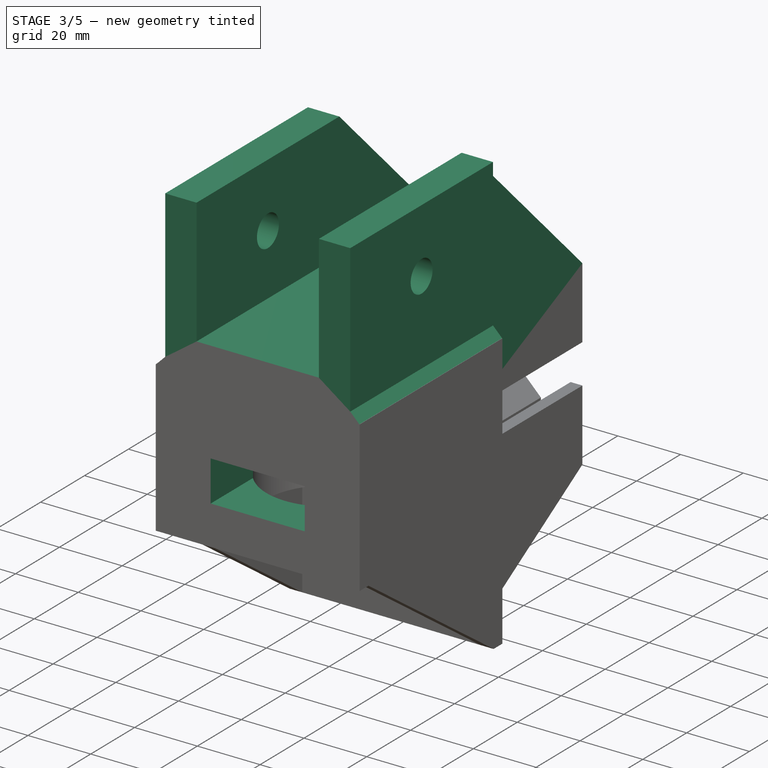
[diagram: stage 3 of 5 — iso view after this stage's code; geometry added in this stage tinted green]
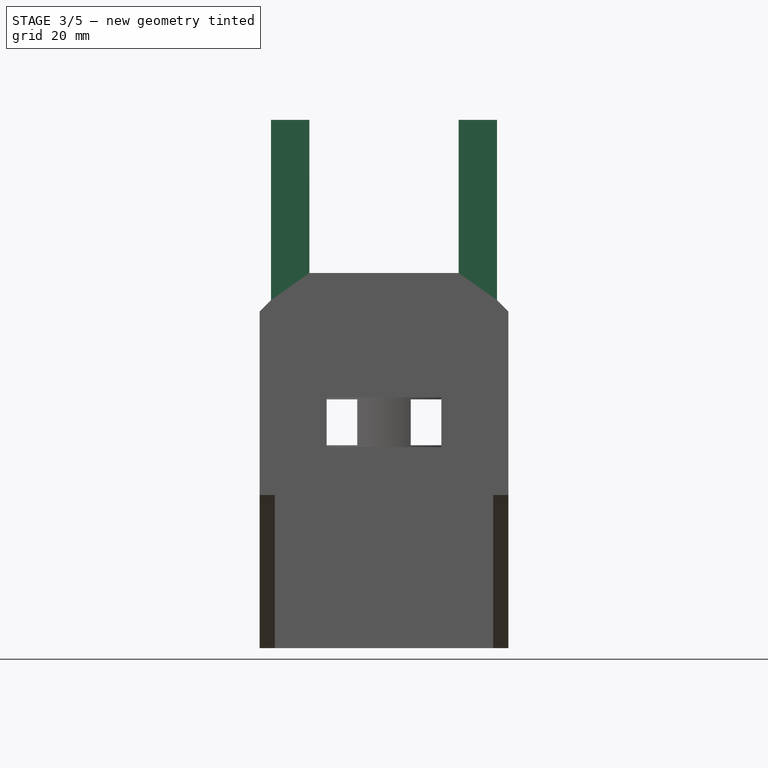
[diagram: stage 3 of 5 — front view after this stage's code; geometry added in this stage tinted green]
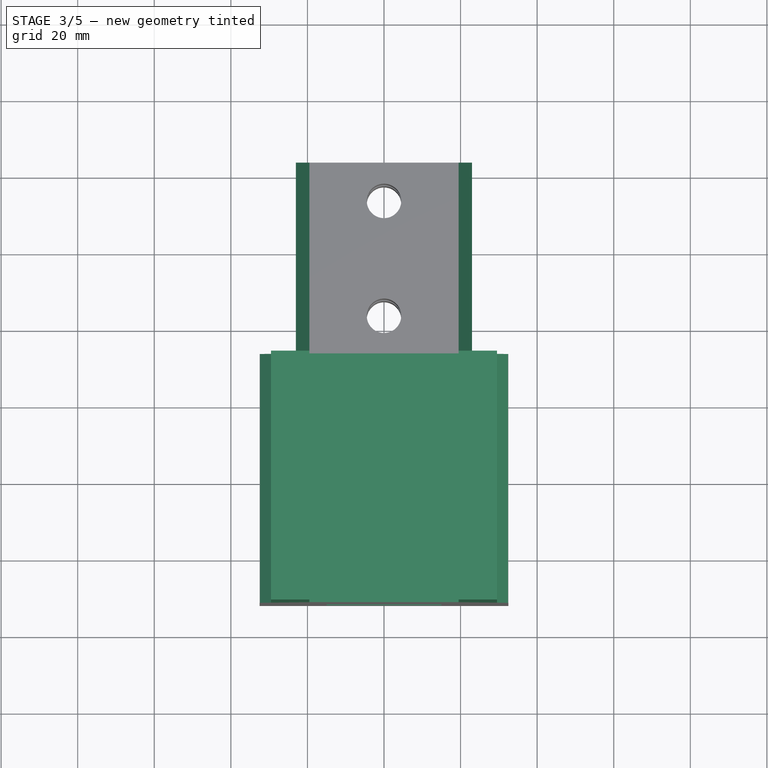
[diagram: stage 3 of 5 — top view after this stage's code; geometry added in this stage tinted green]
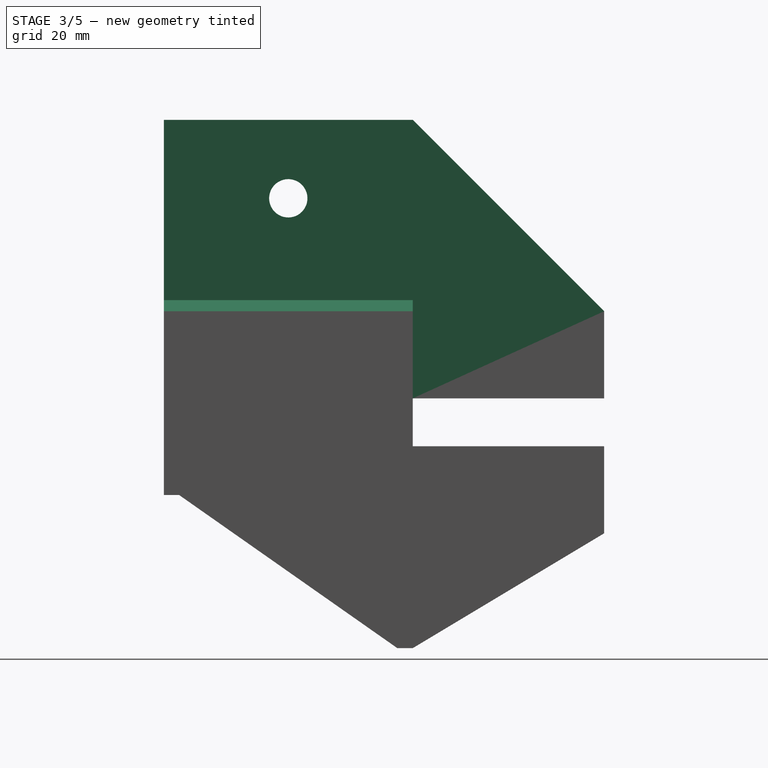
[diagram: stage 3 of 5 — right view after this stage's code; geometry added in this stage tinted green]
FEATURE [PartDesign::Fillet] Fillet
  Base = -> Pocket008 [Edge51,Edge52]
  BaseFeature = -> Pocket008
  Radius = 10
  Refine = true
  SupportTransform = false
  Suppressed = false
  UseAllEdges = false
FEATURE [Sketcher::SketchObject] Sketch014
  ArcFitTolerance = 1e-06
  AttachmentSupport = -> [Fillet]
  FullyConstrained = true
  MakeInternals = false
  MapMode = 5
  Placement = pos=(0,-32.5,0) rot=(1,0,0;1.5708rad)
  sketch-geometry (6):
    g0: LineSegment [constr] StartX=0 StartY=0 StartZ=0 EndX=0 EndY=19 EndZ=0
    g1: LineSegment StartX=-15 StartY=12.5 StartZ=0 EndX=15 EndY=12.5 EndZ=0
    g2: LineSegment StartX=15 StartY=12.5 StartZ=0 EndX=15 EndY=25.5 EndZ=0
    g3: LineSegment StartX=15 StartY=25.5 StartZ=0 EndX=-15 EndY=25.5 EndZ=0
    g4: LineSegment StartX=-15 StartY=25.5 StartZ=0 EndX=-15 EndY=12.5 EndZ=0
    g5: GeomPoint [constr] X=0 Y=19 Z=0
  constraints (15):
    c: Distance(g0) = 19
    c: Coincident(g0,g-1)
    c: PointOnObject(g0,g-2)
    c: Coincident(g1,g2)
    c: Coincident(g2,g3)
    c: Coincident(g3,g4)
    c: Coincident(g4,g1)
    c: Horizontal(g1)
    c: Horizontal(g3)
    c: Vertical(g2)
    c: Vertical(g4)
    c: Symmetric(g3,g1,g5)
    c: Distance(g2,g4) = 30
    c: Distance(g1,g3) = 13
    c: Coincident(g5,g0)
FEATURE [PartDesign::Pocket] Pocket009
  BaseFeature = -> Fillet
  Direction = (0,1,-2e-16)
  Length = 25
  Length2 = 5
  Profile = -> Sketch014
  ReferenceAxis = -> Sketch014 [N_Axis]
  Refine = true
  Suppressed = false
  Type = 0
FEATURE [Sketcher::SketchObject] Sketch015
  ArcFitTolerance = 1e-06
  AttachmentSupport = -> [Pocket009]
  ExternalGeometry = -> [Pocket009]
  FullyConstrained = false
  MakeInternals = false
  MapMode = 5
  Placement = pos=(0,0,48) rot=(0,0,1;0rad)
  sketch-geometry (16):
    g0: LineSegment [constr] StartX=0 StartY=-32.5 StartZ=0 EndX=-19.5 EndY=-32.5 EndZ=0
    g1: LineSegment [constr] StartX=0 StartY=-32.5 StartZ=0 EndX=19.5 EndY=-32.5 EndZ=0
    g2: LineSegment StartX=-19.5 StartY=-32.5 StartZ=0 EndX=-19.5 EndY=82.5 EndZ=0
    g3: LineSegment StartX=-19.5 StartY=82.5 StartZ=0 EndX=-23 EndY=82.5 EndZ=0
    g4: LineSegment StartX=-23 StartY=82.5 StartZ=0 EndX=-23 EndY=32.5 EndZ=0
    g5: LineSegment StartX=-23 StartY=-32.5 StartZ=0 EndX=-19.5 EndY=-32.5 EndZ=0
    g6: LineSegment StartX=19.5 StartY=-32.5 StartZ=0 EndX=23 EndY=-32.5 EndZ=0
    g7: LineSegment StartX=23 StartY=32.5 StartZ=0 EndX=23 EndY=82.5 EndZ=0
    g8: LineSegment StartX=23 StartY=82.5 StartZ=0 EndX=19.5 EndY=82.5 EndZ=0
    g9: LineSegment StartX=19.5 StartY=82.5 StartZ=0 EndX=19.5 EndY=-32.5 EndZ=0
    g10: LineSegment StartX=23 StartY=-32.5 StartZ=0 EndX=29.5 EndY=-32.5 EndZ=0
    g11: LineSegment StartX=29.5 StartY=-32.5 StartZ=0 EndX=29.5 EndY=32.5 EndZ=0
    g12: LineSegment StartX=29.5 StartY=32.5 StartZ=0 EndX=23 EndY=32.5 EndZ=0
    g13: LineSegment StartX=-23 StartY=32.5 StartZ=0 EndX=-29.5 EndY=32.5 EndZ=0
    g14: LineSegment StartX=-29.5 StartY=32.5 StartZ=0 EndX=-29.5 EndY=-32.5 EndZ=0
    g15: LineSegment StartX=-29.5 StartY=-32.5 StartZ=0 EndX=-23 EndY=-32.5 EndZ=0
  constraints (42):
    c: Distance(g0) = 19.5
    c: Symmetric(g-3,g-3,g0)
    c: PointOnObject(g0,g-3)
    c: Distance(g1) = 19.5
    c: Coincident(g1,g0)
    c: PointOnObject(g1,g-3)
    c: Coincident(g2,g3)
    c: Coincident(g3,g4)
    c: Coincident(g5,g2)
    c: Vertical(g2)
    c: Vertical(g4)
    c: Horizontal(g3)
    c: Horizontal(g5)
    c: Distance(g2,g5) = 3.5
    c: Distance(g3,g5) = 115
    c: Coincident(g2,g0)
    c: Coincident(g7,g8)
    c: Coincident(g8,g9)
    c: Coincident(g9,g6)
    c: Horizontal(g6)
    c: Horizontal(g8)
    c: Vertical(g7)
    c: Vertical(g9)
    c: Distance(g6,g9) = 3.5
    c: Distance(g6,g8) = 115
    c: Coincident(g6,g1)
    c: Coincident(g10,g11)
    c: Coincident(g11,g12)
    c: Horizontal(g10)
    c: Horizontal(g12)
    c: Vertical(g11)
    c: Distance(g11,g10) = 6.5
    c: Distance(g10,g12) = 65
    c: Coincident(g10,g6)
    c: Coincident(g13,g14)
    c: Coincident(g14,g15)
    c: Vertical(g14)
    c: Horizontal(g13)
    c: Horizontal(g15)
    c: Distance(g15,g14) = 6.5
    c: Distance(g13,g15) = 65
    c: PointOnObject(g7,g12)
FEATURE [PartDesign::Pad] Pad005
  BaseFeature = -> Pocket009
  Direction = (0,0,1)
  Length = 50
  Length2 = 10
  Profile = -> Sketch015
  ReferenceAxis = -> Sketch015 [N_Axis]
  Refine = true
  Suppressed = false
  Type = 0
FEATURE [Sketcher::SketchObject] Sketch016
  ArcFitTolerance = 1e-06
  FullyConstrained = true
  MakeInternals = false
  MapMode = 5
  Placement = pos=(0,0,48) rot=(0,0,1;0rad)
  sketch-geometry (5):
    g0: LineSegment StartX=-19.5 StartY=-32.5 StartZ=0 EndX=19.5 EndY=-32.5 EndZ=0
    g1: LineSegment StartX=19.5 StartY=-32.5 StartZ=0 EndX=19.5 EndY=32.5 EndZ=0
    g2: LineSegment StartX=19.5 StartY=32.5 StartZ=0 EndX=-19.5 EndY=32.5 EndZ=0
    g3: LineSegment StartX=-19.5 StartY=32.5 StartZ=0 EndX=-19.5 EndY=-32.5 EndZ=0
    g4: GeomPoint [constr] X=0 Y=0 Z=0
  constraints (12):
    c: Coincident(g0,g1)
    c: Coincident(g1,g2)
    c: Coincident(g2,g3)
    c: Coincident(g3,g0)
    c: Horizontal(g0)
    c: Horizontal(g2)
    c: Vertical(g1)
    c: Vertical(g3)
    c: Symmetric(g2,g0,g4)
    c: Distance(g1,g3) = 39
    c: Distance(g0,g2) = 65
    c: Coincident(g4,g-1)
FEATURE [PartDesign::Pad] Pad006
  BaseFeature = -> Pad005
  Direction = (0,0,1)
  Length = 10
  Length2 = 10
  Profile = -> Sketch016
  ReferenceAxis = -> Sketch016 [N_Axis]
  Refine = true
  Suppressed = false
  Type = 0
FEATURE [Sketcher::SketchObject] Sketch017
  ArcFitTolerance = 1e-06
  AttachmentSupport = -> [Pad006]
  ExternalGeometry = -> [Pad006]
  FullyConstrained = true
  MakeInternals = false
  MapMode = 5
  Placement = pos=(29.5,0,0) rot=(0.57735,0.57735,0.57735;2.0944rad)
  sketch-geometry (3):
    g0: LineSegment [constr] StartX=-32.5 StartY=48 StartZ=0 EndX=0 EndY=48 EndZ=0
    g1: LineSegment [constr] StartX=0 StartY=48 StartZ=0 EndX=0 EndY=77.5 EndZ=0
    g2: Circle CenterX=0 CenterY=77.5 CenterZ=0 NormalX=0 NormalY=0 NormalZ=1 AngleXU=0 Radius=5
  constraints (7):
    c: Coincident(g0,g-3)
    c: Symmetric(g-3,g-3,g0)
    c: Distance(g1) = 29.5
    c: Coincident(g1,g0)
    c: PointOnObject(g1,g-2)
    c: Diameter(g2) = 10
    c: Coincident(g2,g1)
FEATURE [PartDesign::Pocket] Pocket010
  BaseFeature = -> Pad006
  Direction = (-1,0,0)
  Length = 80
  Length2 = 5
  Profile = -> Sketch017
  ReferenceAxis = -> Sketch017 [N_Axis]
  Refine = true
  Suppressed = false
  Type = 0
FEATURE [PartDesign::Chamfer] Chamfer
  Angle = 45
  Base = -> Pocket010 [Edge64,Edge68]
  BaseFeature = -> Pocket010
  ChamferType = 0
  FlipDirection = false
  Refine = true
  Size = 50
  Size2 = 1
  SupportTransform = false
  Suppressed = false
  UseAllEdges = false
FEATURE [PartDesign::Chamfer] Chamfer001
  Angle = 45
  Base = -> Chamfer [Edge212,Edge201]
  BaseFeature = -> Chamfer
  ChamferType = 0
  FlipDirection = false
  Refine = true
  Size = 2.9
  Size2 = 1
  SupportTransform = false
  Suppressed = false
  UseAllEdges = false
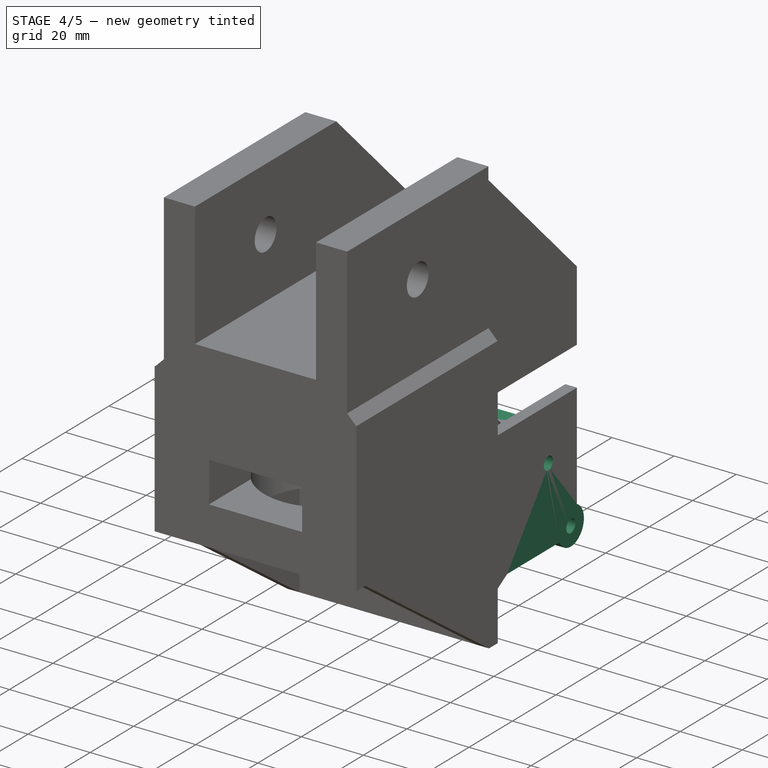
[diagram: stage 4 of 5 — iso view after this stage's code; geometry added in this stage tinted green]
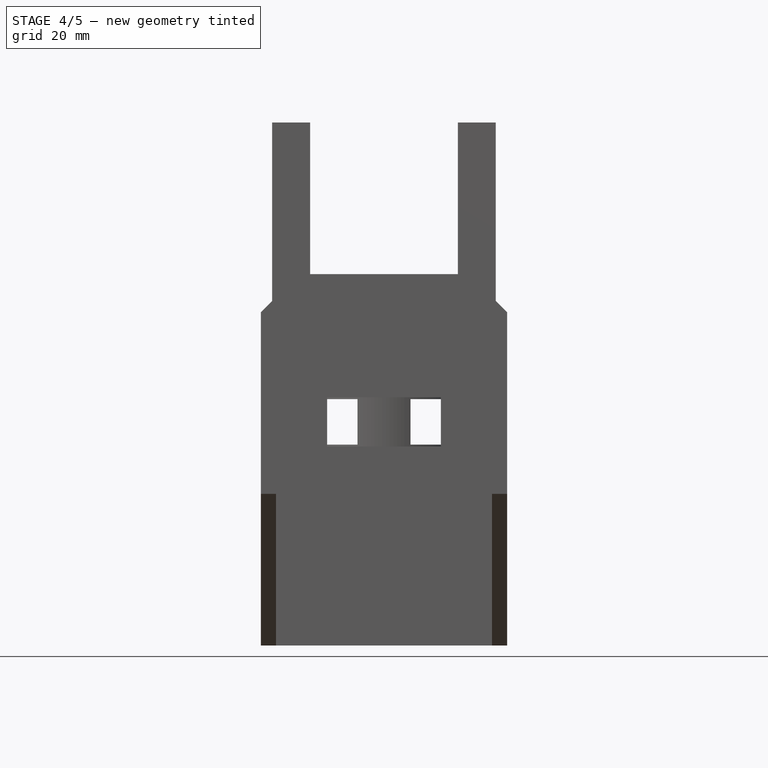
[diagram: stage 4 of 5 — front view after this stage's code; geometry added in this stage tinted green]
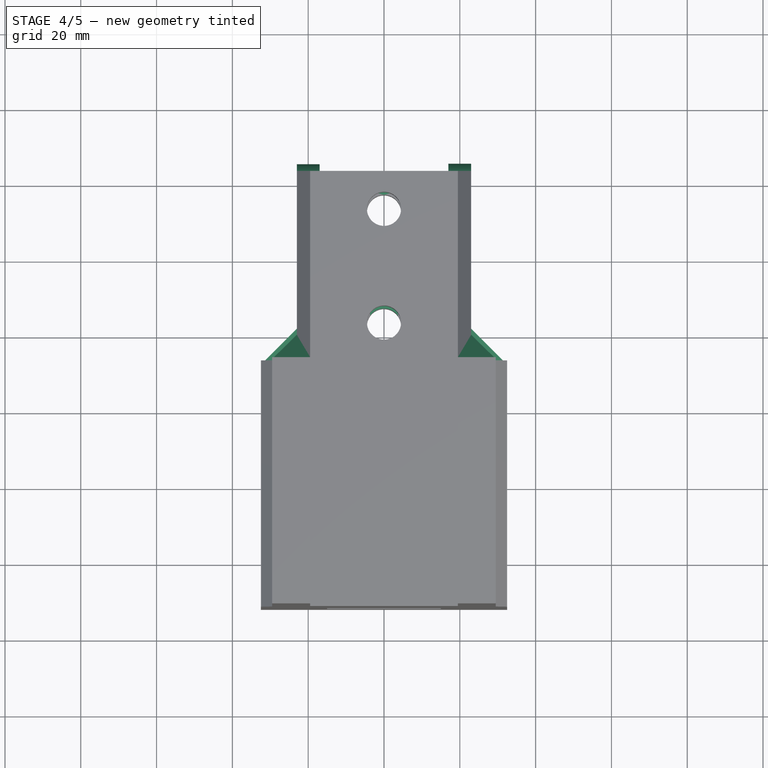
[diagram: stage 4 of 5 — top view after this stage's code; geometry added in this stage tinted green]
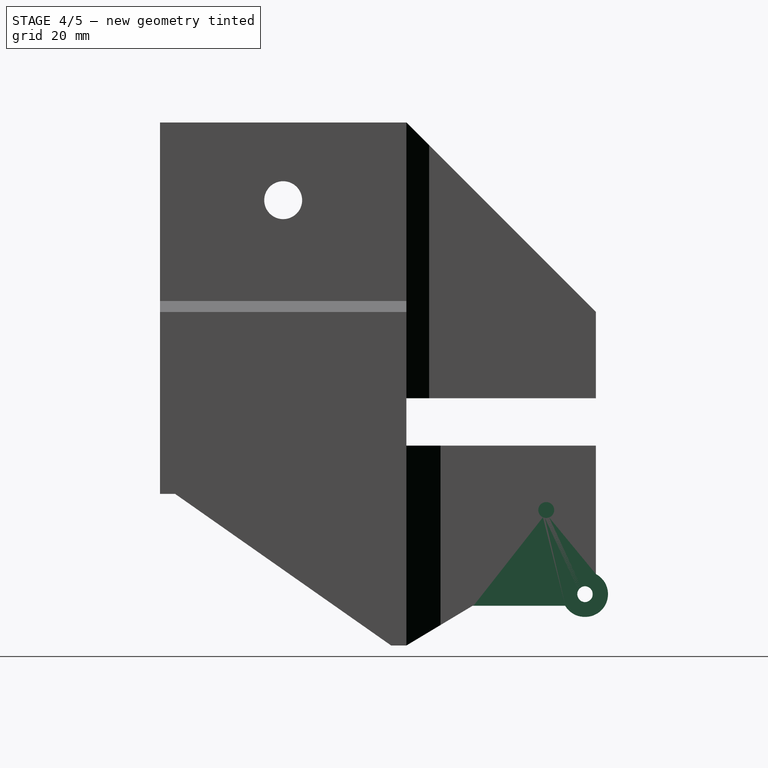
[diagram: stage 4 of 5 — right view after this stage's code; geometry added in this stage tinted green]
FEATURE [PartDesign::Chamfer] Chamfer002
  Angle = 45
  Base = -> Chamfer001 [Edge39,Edge7]
  BaseFeature = -> Chamfer001
  ChamferType = 0
  FlipDirection = false
  Refine = true
  Size = 9
  Size2 = 1
  SupportTransform = false
  Suppressed = false
  UseAllEdges = false
FEATURE [PartDesign::Chamfer] Chamfer003
  Angle = 45
  Base = -> Chamfer002 [Edge45,Edge13]
  BaseFeature = -> Chamfer002
  ChamferType = 0
  FlipDirection = false
  Refine = true
  Size = 6
  Size2 = 1
  SupportTransform = false
  Suppressed = false
  UseAllEdges = false
FEATURE [Sketcher::SketchObject] Sketch018
  ArcFitTolerance = 1e-06
  AttachmentSupport = -> [Chamfer003]
  ExternalGeometry = -> [Chamfer003]
  FullyConstrained = true
  MakeInternals = false
  MapMode = 5
  Placement = pos=(0,82.5,0) rot=(0,0.707107,0.707107;3.14159rad)
  sketch-geometry (6):
    g0: LineSegment [constr] StartX=4.08147e-06 StartY=26 StartZ=0 EndX=4.08147e-06 EndY=12 EndZ=0
    g1: LineSegment StartX=-19.25 StartY=-0.25 StartZ=0 EndX=19.25 EndY=-0.25 EndZ=0
    g2: LineSegment StartX=19.25 StartY=-0.25 StartZ=0 EndX=19.25 EndY=38.25 EndZ=0
    g3: LineSegment StartX=19.25 StartY=38.25 StartZ=0 EndX=-19.25 EndY=38.25 EndZ=0
    g4: LineSegment StartX=-19.25 StartY=38.25 StartZ=0 EndX=-19.25 EndY=-0.25 EndZ=0
    g5: GeomPoint [constr] X=4.08147e-06 Y=19 Z=0
  constraints (14):
    c: Symmetric(g-3,g-3,g0)
    c: Symmetric(g-4,g-4,g0)
    c: Coincident(g1,g2)
    c: Coincident(g2,g3)
    c: Coincident(g3,g4)
    c: Coincident(g4,g1)
    c: Horizontal(g1)
    c: Horizontal(g3)
    c: Vertical(g2)
    c: Vertical(g4)
    c: Symmetric(g3,g1,g5)
    c: Distance(g2,g4) = 38.5
    c: Distance(g1,g3) = 38.5
    c: Symmetric(g0,g0,g5)
FEATURE [PartDesign::Pocket] Pocket011
  BaseFeature = -> Chamfer003
  Direction = (0,-1,2e-16)
  Length = 50
  Length2 = 5
  Profile = -> Sketch018
  ReferenceAxis = -> Sketch018 [N_Axis]
  Refine = true
  Suppressed = false
  Type = 0
FEATURE [Sketcher::SketchObject] Sketch019
  ArcFitTolerance = 1e-06
  AttachmentSupport = -> [Pocket011]
  ExternalGeometry = -> [Pocket011]
  FullyConstrained = true
  MakeInternals = false
  MapMode = 5
  Placement = pos=(23,0,0) rot=(0.57735,0.57735,0.57735;2.0944rad)
  sketch-geometry (11):
    g0: LineSegment [constr] StartX=82.5 StartY=12.75 StartZ=0 EndX=82.5 EndY=-0.25 EndZ=0
    g1: LineSegment [constr] StartX=82.5 StartY=-0.25 StartZ=0 EndX=82.5 EndY=-1.45 EndZ=0
    g2: LineSegment StartX=82.5 StartY=-1.45 StartZ=0 EndX=42.5 EndY=-1.45 EndZ=0
    g3: LineSegment StartX=42.5 StartY=-1.45 StartZ=0 EndX=42.5 EndY=-29.25 EndZ=0
    g4: LineSegment StartX=42.5 StartY=-29.25 StartZ=0 EndX=82.5 EndY=-29.25 EndZ=0
    g5: LineSegment StartX=82.5 StartY=-29.25 StartZ=0 EndX=82.5 EndY=-1.45 EndZ=0
    g6: LineSegment [constr] StartX=82.5 StartY=-29.25 StartZ=0 EndX=82.5 EndY=-26.45 EndZ=0
    g7: LineSegment [constr] StartX=82.5 StartY=-26.45 StartZ=0 EndX=79.7 EndY=-26.45 EndZ=0
    g8: LineSegment [constr] StartX=79.7 StartY=-26.45 StartZ=0 EndX=79.7 EndY=-29.25 EndZ=0
    g9: LineSegment [constr] StartX=79.7 StartY=-29.25 StartZ=0 EndX=82.5 EndY=-29.25 EndZ=0
    g10: Circle CenterX=79.7 CenterY=-26.45 CenterZ=0 NormalX=0 NormalY=0 NormalZ=1 AngleXU=0 Radius=6
  constraints (30):
    c: Distance(g0) = 13
    c: Coincident(g0,g-3)
    c: PointOnObject(g0,g-3)
    c: Distance(g1) = 1.2
    c: Coincident(g1,g0)
    c: PointOnObject(g1,g-3)
    c: Coincident(g2,g3)
    c: Coincident(g3,g4)
    c: Coincident(g4,g5)
    c: Coincident(g5,g2)
    c: Horizontal(g2)
    c: Horizontal(g4)
    c: Vertical(g3)
    c: Vertical(g5)
    c: Distance(g3,g5) = 40
    c: Distance(g2,g4) = 27.8
    c: Coincident(g2,g1)
    c: Coincident(g6,g7)
    c: Coincident(g7,g8)
    c: Coincident(g8,g9)
    c: Coincident(g9,g6)
    c: Vertical(g6)
    c: Vertical(g8)
    c: Horizontal(g7)
    c: Horizontal(g9)
    c: Distance(g6,g8) = 2.8
    c: Distance(g7,g9) = 2.8
    c: Coincident(g6,g4)
    c: Diameter(g10) = 12
    c: Coincident(g10,g7)
FEATURE [PartDesign::Pad] Pad007
  BaseFeature = -> Pocket011
  Direction = (1,0,0)
  Length = 6
  Length2 = 10
  Profile = -> Sketch019
  ReferenceAxis = -> Sketch019 [N_Axis]
  Refine = true
  Reversed = true
  Suppressed = false
  Type = 0
FEATURE [Sketcher::SketchObject] Sketch020
  ArcFitTolerance = 1e-06
  AttachmentSupport = -> [Pad007]
  ExternalGeometry = -> [Pad007]
  FullyConstrained = true
  MakeInternals = false
  MapMode = 5
  Placement = pos=(23,0,0) rot=(0.57735,0.57735,0.57735;2.0944rad)
  sketch-geometry (6):
    g0: LineSegment [constr] StartX=79.7 StartY=-26.45 StartZ=0 EndX=79.7 EndY=-4.25 EndZ=0
    g1: LineSegment [constr] StartX=79.7 StartY=-4.25 StartZ=0 EndX=69.4 EndY=-4.25 EndZ=0
    g2: LineSegment [constr] StartX=69.4 StartY=-4.25 StartZ=0 EndX=69.4 EndY=-26.45 EndZ=0
    g3: LineSegment [constr] StartX=69.4 StartY=-26.45 StartZ=0 EndX=79.7 EndY=-26.45 EndZ=0
    g4: Circle CenterX=69.4 CenterY=-4.25 CenterZ=0 NormalX=0 NormalY=0 NormalZ=1 AngleXU=0 Radius=2.1
    g5: Circle CenterX=79.7 CenterY=-26.45 CenterZ=0 NormalX=0 NormalY=0 NormalZ=1 AngleXU=0 Radius=2.1
  constraints (15):
    c: Coincident(g0,g1)
    c: Coincident(g1,g2)
    c: Coincident(g2,g3)
    c: Coincident(g3,g0)
    c: Vertical(g0)
    c: Vertical(g2)
    c: Horizontal(g1)
    c: Horizontal(g3)
    c: Distance(g0,g2) = 10.3
    c: Distance(g1,g3) = 22.2
    c: Coincident(g0,g-3)
    c: Diameter(g4) = 4.2
    c: Coincident(g4,g1)
    c: Diameter(g5) = 4.2
    c: Coincident(g5,g0)
FEATURE [PartDesign::Pocket] Pocket012
  BaseFeature = -> Pad007
  Direction = (-1,0,0)
  Length = 10
  Length2 = 5
  Profile = -> Sketch020
  ReferenceAxis = -> Sketch020 [N_Axis]
  Refine = true
  Suppressed = false
  Type = 0
FEATURE [Sketcher::SketchObject] Sketch021
  ArcFitTolerance = 1e-06
  AttachmentSupport = -> [Pocket012]
  ExternalGeometry = -> [Pocket012]
  FullyConstrained = false
  MakeInternals = false
  MapMode = 5
  Placement = pos=(-23,0,0) rot=(0.57735,-0.57735,-0.57735;2.0944rad)
  sketch-geometry (11):
    g0: LineSegment [constr] StartX=-82.5 StartY=12.75 StartZ=0 EndX=-82.5 EndY=-0.25 EndZ=0
    g1: LineSegment [constr] StartX=-82.5 StartY=-0.25 StartZ=0 EndX=-82.5 EndY=-1.45 EndZ=0
    g2: LineSegment StartX=-82.5 StartY=-1.45 StartZ=0 EndX=-82.5 EndY=-21.2192 EndZ=0
    g3: LineSegment StartX=-74.3934 StartY=-29.5 StartZ=0 EndX=-42.5 EndY=-29.5 EndZ=0
    g4: LineSegment StartX=-42.5 StartY=-29.5 StartZ=0 EndX=-42.5 EndY=-1.45 EndZ=0
    g5: LineSegment StartX=-42.5 StartY=-1.45 StartZ=0 EndX=-82.5 EndY=-1.45 EndZ=0
    g6: LineSegment [constr] StartX=-82.3602 StartY=-29.2496 StartZ=0 EndX=-79.5602 EndY=-29.2496 EndZ=0
    g7: LineSegment [constr] StartX=-79.5602 StartY=-29.2496 StartZ=0 EndX=-79.5602 EndY=-26.4496 EndZ=0
    g8: LineSegment [constr] StartX=-79.5602 StartY=-26.4496 StartZ=0 EndX=-82.3602 EndY=-26.4496 EndZ=0
    g9: LineSegment [constr] StartX=-82.3602 StartY=-26.4496 StartZ=0 EndX=-82.3602 EndY=-29.2496 EndZ=0
    g10: ArcOfCircle CenterX=-79.5602 CenterY=-26.4496 CenterZ=0 NormalX=0 NormalY=0 NormalZ=1 AngleXU=0 Radius=6 StartAngle=2.08286 EndAngle=5.74987
  constraints (30):
    c: Distance(g0) = 13
    c: Coincident(g0,g-3)
    c: PointOnObject(g0,g-3)
    c: Distance(g1) = 1.2
    c: Coincident(g1,g0)
    c: PointOnObject(g1,g-3)
    c: Coincident(g3,g4)
    c: Coincident(g4,g5)
    c: Coincident(g5,g2)
    c: Vertical(g2)
    c: Vertical(g4)
    c: Horizontal(g3)
    c: Horizontal(g5)
    c: Distance(g2,g4) = 40
    c: Distance(g6,g5) = 27.8
    c: Coincident(g2,g1)
    c: Coincident(g6,g7)
    c: Coincident(g7,g8)
    c: Coincident(g8,g9)
    c: Coincident(g9,g6)
    c: Horizontal(g6)
    c: Horizontal(g8)
    c: Vertical(g7)
    c: Vertical(g9)
    c: Distance(g7,g9) = 2.8
    c: Distance(g6,g8) = 2.8
    c: Diameter(g10) = 12
    c: Coincident(g10,g7)
    c: Coincident(g10,g3)
    c: Coincident(g10,g2)
FEATURE [PartDesign::Pad] Pad008
  BaseFeature = -> Pocket012
  Direction = (-1,0,0)
  Length = 6
  Length2 = 10
  Profile = -> Sketch021
  ReferenceAxis = -> Sketch021 [N_Axis]
  Refine = true
  Reversed = true
  Suppressed = false
  Type = 0
FEATURE [Sketcher::SketchObject] Sketch022
  ArcFitTolerance = 1e-06
  AttachmentSupport = -> [Pad008]
  ExternalGeometry = -> [Pad008]
  FullyConstrained = true
  MakeInternals = false
  MapMode = 5
  Placement = pos=(-23,0,0) rot=(0.57735,-0.57735,-0.57735;2.0944rad)
  sketch-geometry (6):
    g0: Circle CenterX=-79.5602 CenterY=-26.4496 CenterZ=0 NormalX=0 NormalY=0 NormalZ=1 AngleXU=0 Radius=2.1
    g1: LineSegment [constr] StartX=-79.5602 StartY=-26.4496 StartZ=0 EndX=-69.2602 EndY=-26.4496 EndZ=0
    g2: LineSegment [constr] StartX=-69.2602 StartY=-26.4496 StartZ=0 EndX=-69.2602 EndY=-4.24965 EndZ=0
    g3: LineSegment [constr] StartX=-69.2602 StartY=-4.24965 StartZ=0 EndX=-79.5602 EndY=-4.24965 EndZ=0
    g4: LineSegment [constr] StartX=-79.5602 StartY=-4.24965 StartZ=0 EndX=-79.5602 EndY=-26.4496 EndZ=0
    g5: Circle CenterX=-69.2602 CenterY=-4.24965 CenterZ=0 NormalX=0 NormalY=0 NormalZ=1 AngleXU=0 Radius=2.1
  constraints (15):
    c: Diameter(g0) = 4.2
    c: Coincident(g0,g-3)
    c: Coincident(g1,g2)
    c: Coincident(g2,g3)
    c: Coincident(g3,g4)
    c: Coincident(g4,g1)
    c: Horizontal(g1)
    c: Horizontal(g3)
    c: Vertical(g2)
    c: Vertical(g4)
    c: Distance(g2,g4) = 10.3
    c: Distance(g1,g3) = 22.2
    c: Coincident(g1,g0)
    c: Diameter(g5) = 4.2
    c: Coincident(g5,g2)
FEATURE [PartDesign::Pocket] Pocket013
  BaseFeature = -> Pad008
  Direction = (1,0,0)
  Length = 10
  Length2 = 5
  Profile = -> Sketch022
  ReferenceAxis = -> Sketch022 [N_Axis]
  Refine = true
  Suppressed = false
  Type = 0
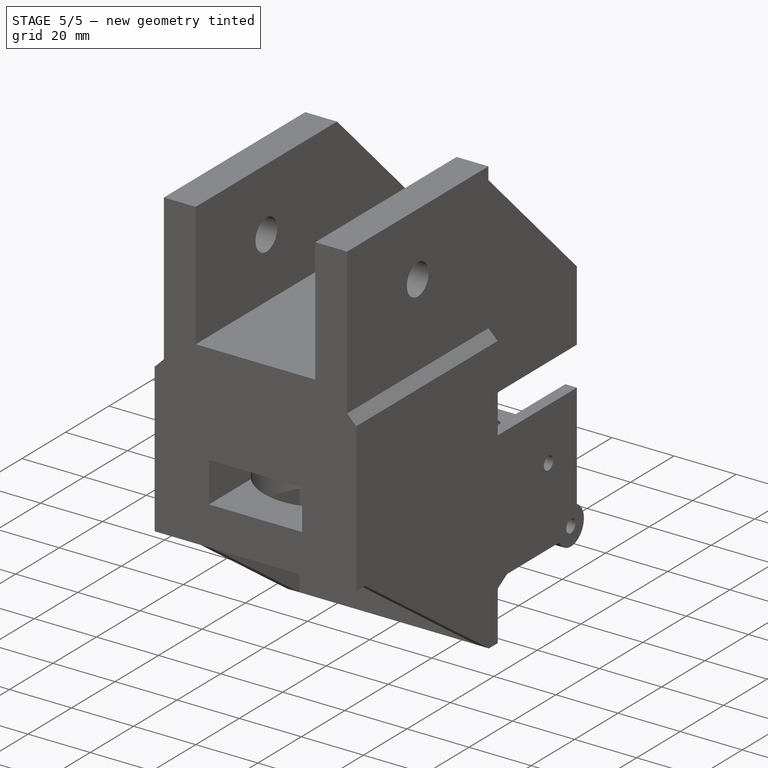
[diagram: stage 5 of 5 — iso view after this stage's code; geometry added in this stage tinted green]
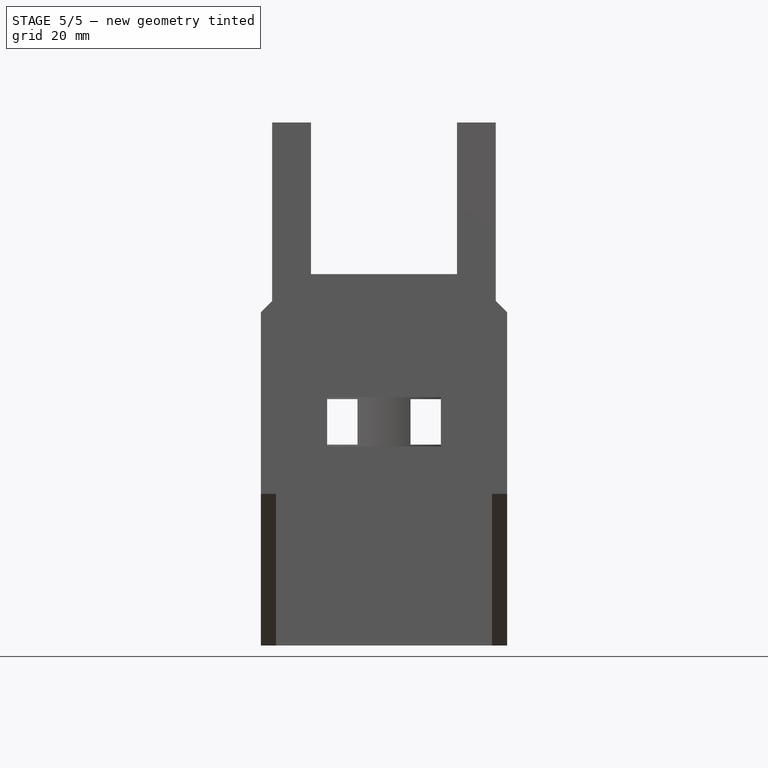
[diagram: stage 5 of 5 — front view after this stage's code; geometry added in this stage tinted green]
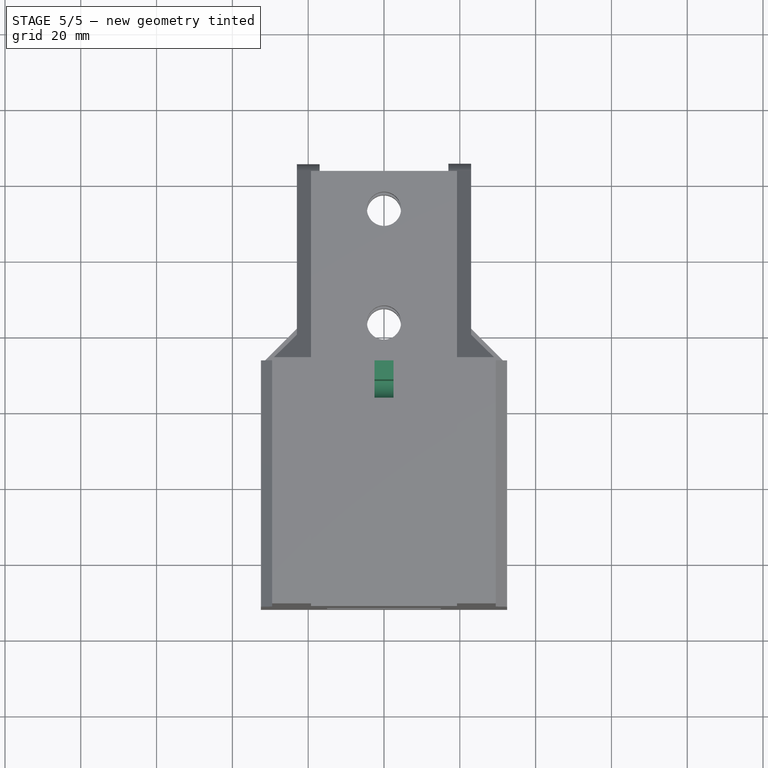
[diagram: stage 5 of 5 — top view after this stage's code; geometry added in this stage tinted green]
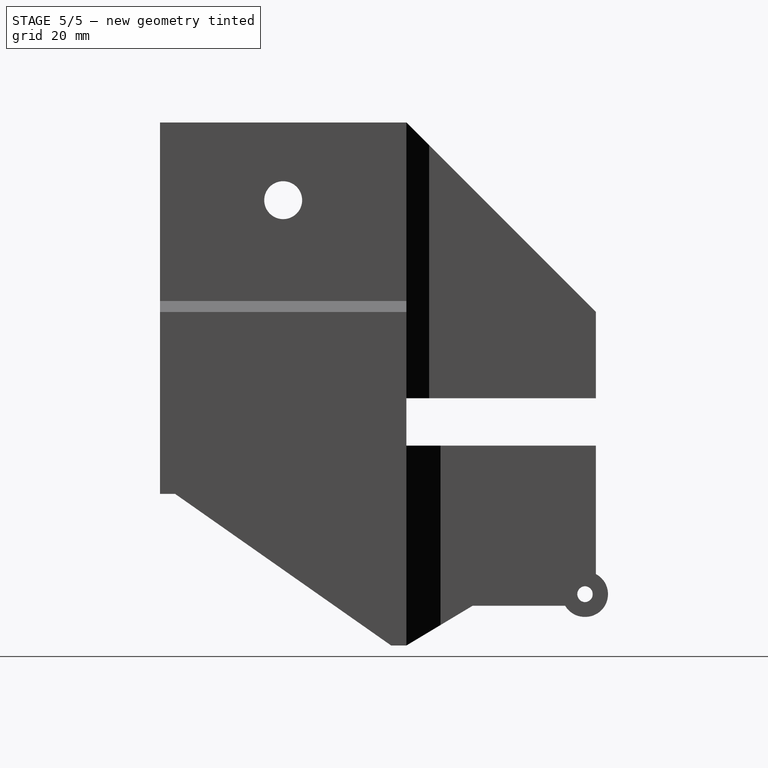
[diagram: stage 5 of 5 — right view after this stage's code; geometry added in this stage tinted green]
FEATURE [PartDesign::Pad] Pad009
  BaseFeature = -> Pocket013
  Direction = (1,0,0)
  Length = 0.25
  Length2 = 10
  Profile = -> Pocket013 [Face46]
  Refine = true
  Suppressed = false
  Type = 0
FEATURE [PartDesign::Pad] Pad010
  BaseFeature = -> Pad009
  Direction = (-1,0,0)
  Length = 0.25
  Length2 = 10
  Profile = -> Pad009 [Face8]
  Refine = true
  Suppressed = false
  Type = 0
FEATURE [Sketcher::SketchObject] Sketch023
  ArcFitTolerance = 1e-06
  AttachmentSupport = -> [Pocket012]
  ExternalGeometry = -> [Pocket012]
  FullyConstrained = true
  MakeInternals = false
  MapMode = 5
  Placement = pos=(0,32.5,0) rot=(0,0.707107,0.707107;3.14159rad)
  sketch-geometry (6):
    g0: LineSegment [constr] StartX=-7 StartY=19 StartZ=0 EndX=7 EndY=19 EndZ=0
    g1: LineSegment StartX=-2.5 StartY=16.5 StartZ=0 EndX=2.5 EndY=16.5 EndZ=0
    g2: LineSegment StartX=2.5 StartY=16.5 StartZ=0 EndX=2.5 EndY=21.5 EndZ=0
    g3: LineSegment StartX=2.5 StartY=21.5 StartZ=0 EndX=-2.5 EndY=21.5 EndZ=0
    g4: LineSegment StartX=-2.5 StartY=21.5 StartZ=0 EndX=-2.5 EndY=16.5 EndZ=0
    g5: GeomPoint [constr] X=4.08147e-06 Y=19 Z=0
  constraints (14):
    c: Symmetric(g-4,g-4,g0)
    c: Symmetric(g-3,g-3,g0)
    c: Coincident(g1,g2)
    c: Coincident(g2,g3)
    c: Coincident(g3,g4)
    c: Coincident(g4,g1)
    c: Horizontal(g1)
    c: Horizontal(g3)
    c: Vertical(g2)
    c: Vertical(g4)
    c: Symmetric(g3,g1,g5)
    c: Distance(g2,g4) = 5
    c: Distance(g1,g3) = 5
    c: Symmetric(g0,g0,g5)
FEATURE [PartDesign::Pocket] Pocket014
  BaseFeature = -> Pad010
  Direction = (0,-1,2e-16)
  Length = 10
  Length2 = 5
  Profile = -> Sketch023
  ReferenceAxis = -> Sketch023 [N_Axis]
  Refine = true
  Suppressed = false
  Type = 0
FEATURE [Sketcher::SketchObject] Sketch024
  ArcFitTolerance = 1e-06
  AttachmentSupport = -> [Pocket014]
  ExternalGeometry = -> [Pocket014]
  FullyConstrained = true
  MakeInternals = false
  MapMode = 5
  Placement = pos=(0,0,58) rot=(0,0,1;0rad)
  sketch-geometry (6):
    g0: LineSegment [constr] StartX=0 StartY=32.5 StartZ=0 EndX=0 EndY=25 EndZ=0
    g1: LineSegment StartX=-2.5 StartY=22.5 StartZ=0 EndX=2.5 EndY=22.5 EndZ=0
    g2: LineSegment StartX=2.5 StartY=22.5 StartZ=0 EndX=2.5 EndY=27.5 EndZ=0
    g3: LineSegment StartX=2.5 StartY=27.5 StartZ=0 EndX=-2.5 EndY=27.5 EndZ=0
    g4: LineSegment StartX=-2.5 StartY=27.5 StartZ=0 EndX=-2.5 EndY=22.5 EndZ=0
    g5: GeomPoint [constr] X=0 Y=25 Z=0
  constraints (15):
    c: Distance(g0) = 7.5
    c: Symmetric(g-3,g-3,g0)
    c: PointOnObject(g0,g-2)
    c: Coincident(g1,g2)
    c: Coincident(g2,g3)
    c: Coincident(g3,g4)
    c: Coincident(g4,g1)
    c: Horizontal(g1)
    c: Horizontal(g3)
    c: Vertical(g2)
    c: Vertical(g4)
    c: Symmetric(g3,g1,g5)
    c: Distance(g2,g4) = 5
    c: Distance(g1,g3) = 5
    c: Coincident(g5,g0)
FEATURE [PartDesign::Pocket] Pocket015
  BaseFeature = -> Pocket014
  Direction = (0,0,-1)
  Length = 40
  Length2 = 5
  Profile = -> Sketch024
  ReferenceAxis = -> Sketch024 [N_Axis]
  Refine = true
  Suppressed = false
  Type = 0
FEATURE [PartDesign::Fillet] Fillet001
  Base = -> Pocket015 [Edge141]
  BaseFeature = -> Pocket015
  Radius = 5
  Refine = true
  SupportTransform = false
  Suppressed = false
  UseAllEdges = false
FEATURE [PartDesign::Fillet] Fillet002
  Base = -> Fillet001 [Edge52]
  BaseFeature = -> Fillet001
  Radius = 2.5
  Refine = true
  SupportTransform = false
  Suppressed = false
  UseAllEdges = false
FEATURE [Sketcher::SketchObject] Sketch025
  ArcFitTolerance = 1e-06
  AttachmentSupport = -> [Fillet002]
  ExternalGeometry = -> [Fillet002]
  FullyConstrained = true
  MakeInternals = false
  MapMode = 5
  Placement = pos=(0,0,58) rot=(0,0,1;0rad)
  sketch-geometry (4):
    g0: LineSegment StartX=-2.5 StartY=27.5 StartZ=0 EndX=2.5 EndY=27.5 EndZ=0
    g1: LineSegment StartX=2.5 StartY=27.5 StartZ=0 EndX=2.5 EndY=37.5 EndZ=0
    g2: LineSegment StartX=2.5 StartY=37.5 StartZ=0 EndX=-2.5 EndY=37.5 EndZ=0
    g3: LineSegment StartX=-2.5 StartY=37.5 StartZ=0 EndX=-2.5 EndY=27.5 EndZ=0
  constraints (11):
    c: Coincident(g0,g1)
    c: Coincident(g1,g2)
    c: Coincident(g2,g3)
    c: Coincident(g3,g0)
    c: Horizontal(g0)
    c: Horizontal(g2)
    c: Vertical(g1)
    c: Vertical(g3)
    c: Distance(g1,g3) = 5
    c: Distance(g0,g2) = 10
    c: Coincident(g0,g-3)
FEATURE [PartDesign::Pocket] Pocket016
  BaseFeature = -> Fillet002
  Direction = (0,0,-1)
  Length = 10
  Length2 = 5
  Profile = -> Sketch025
  ReferenceAxis = -> Sketch025 [N_Axis]
  Refine = true
  Suppressed = false
  Type = 0
FEATURE [PartDesign::Body] Body
  AllowCompound = false
  Group = -> [Sketch,Pad,Sketch001,Pocket,Sketch002,Pad001,Sketch003,Pocket001,Sketch004,Pad002,Sketch005,Pocket002,Sketch006,Pad003,Sketch007,Pocket003,Sketch008,Pocket004,Sketch009,Pad004,Sketch010,Pocket005,Sketch011,Pocket006,Sketch012,Pocket007,Sketch013,Pocket008,Fillet,Sketch014,Pocket009,Sketch015,Pad005,Sketch016,Pad006,Sketch017,Pocket010,Chamfer,Chamfer001,Chamfer002,Chamfer003,Sketch018,Pocket011,+18 more]
  Origin = -> Origin
  Tip = -> Pocket016
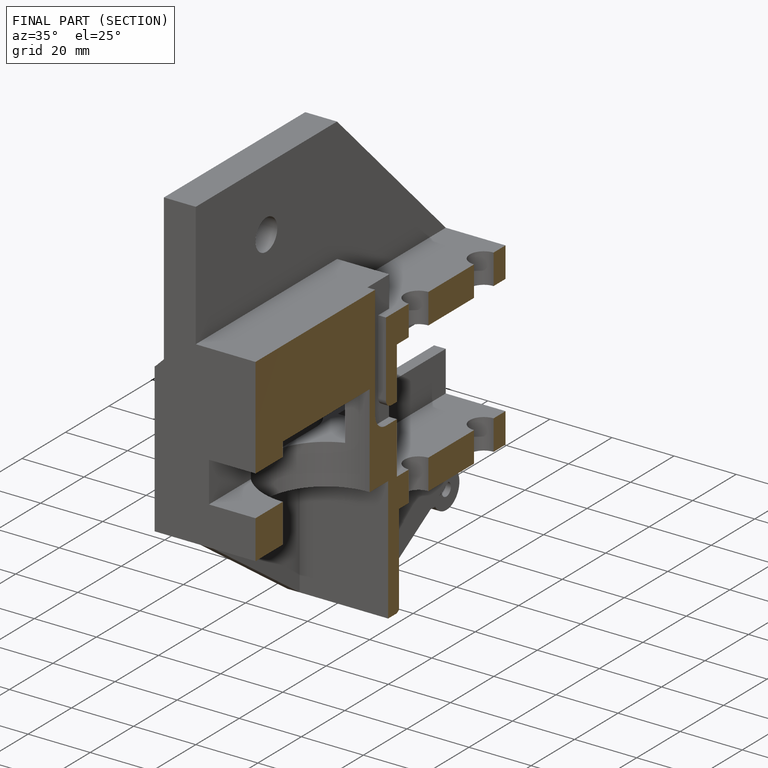
[diagram: finished part — half-section view (interior)]
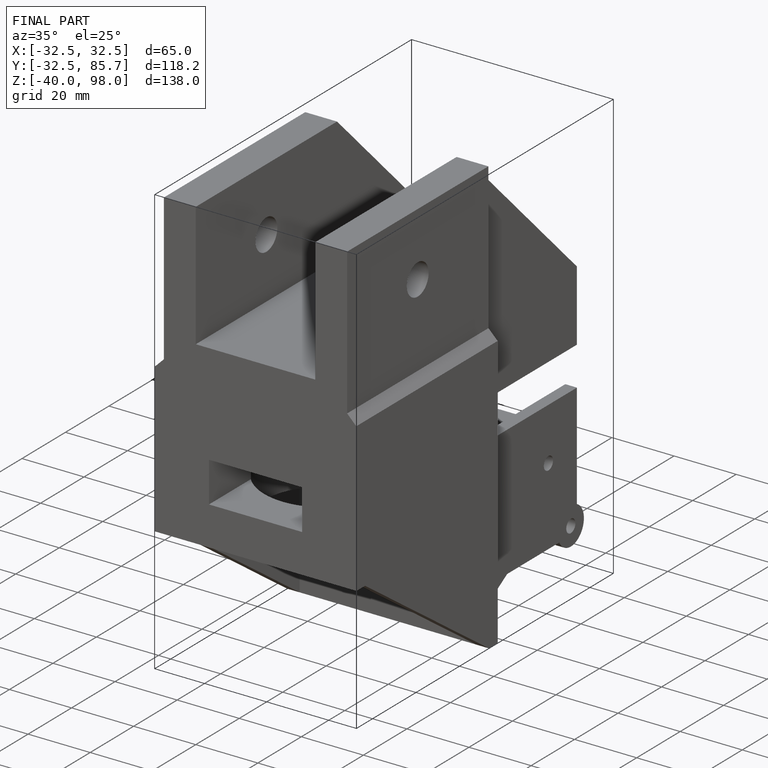
[diagram: finished part — iso view with bounding-box wireframe]
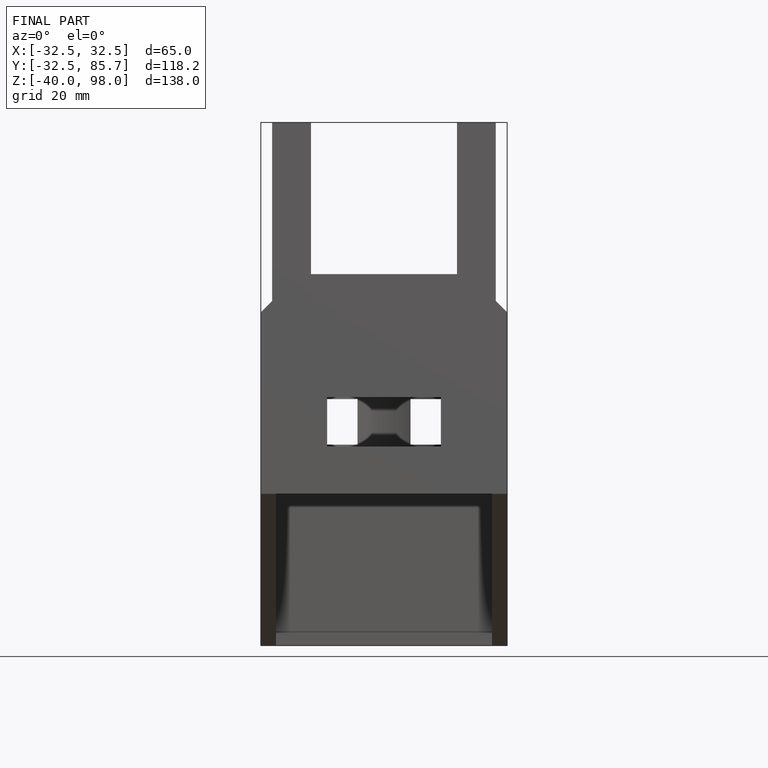
[diagram: finished part — front view with bounding-box wireframe]
